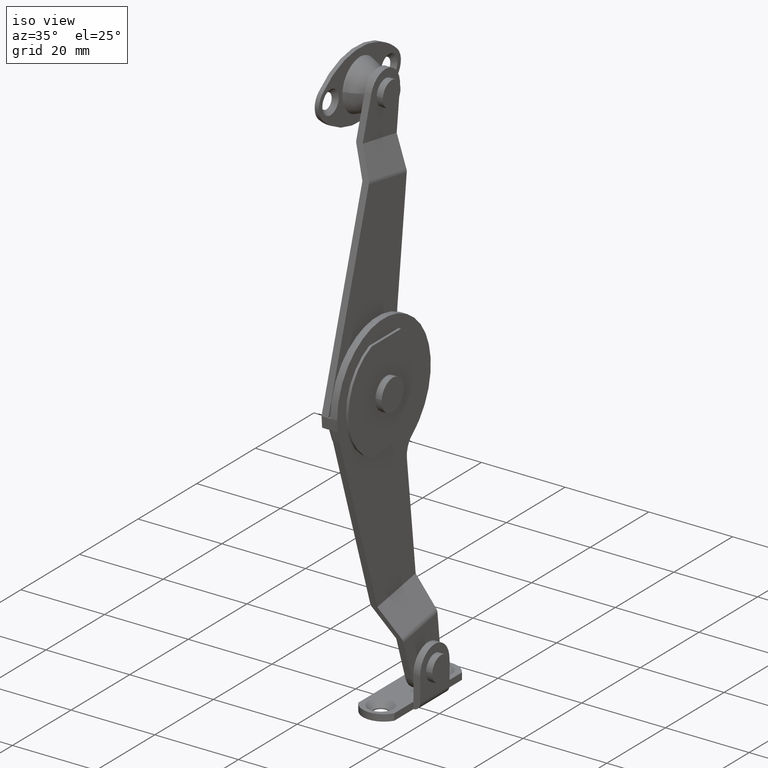
[diagram: clean part render]
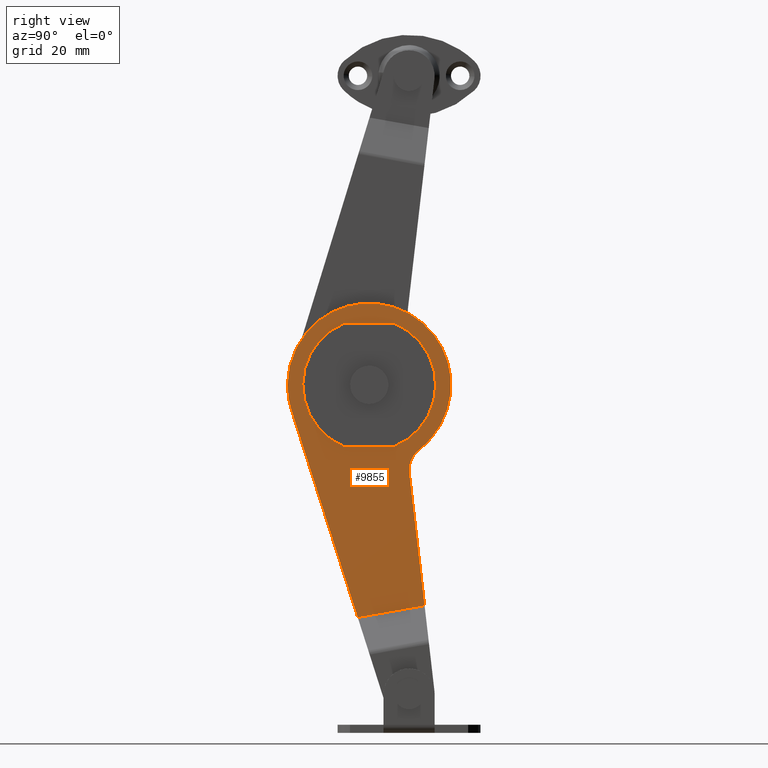
[diagram: tour spotlight — one face highlighted and labeled with its STEP entity id]
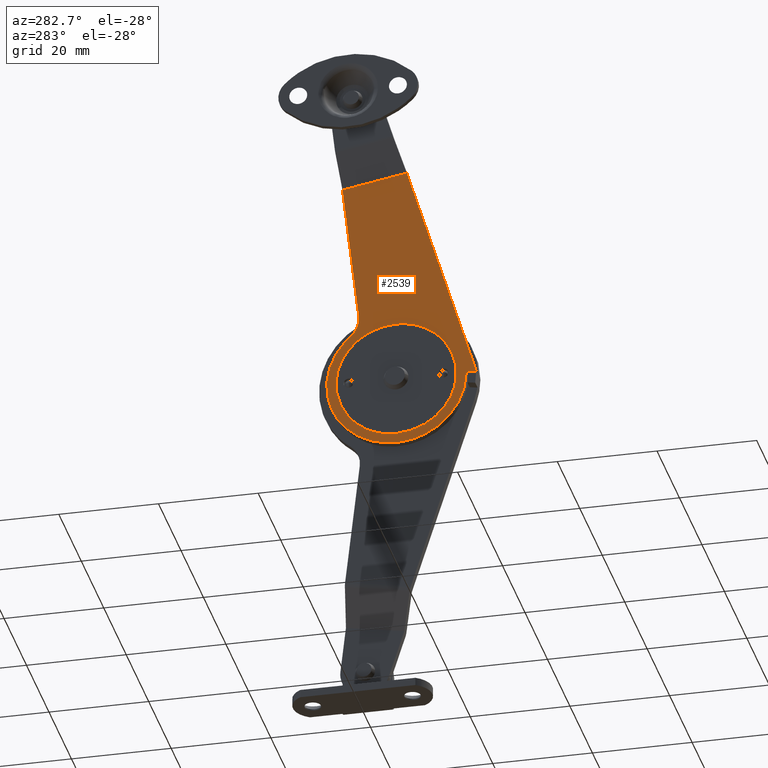
[diagram: tour spotlight — one face highlighted and labeled with its STEP entity id]
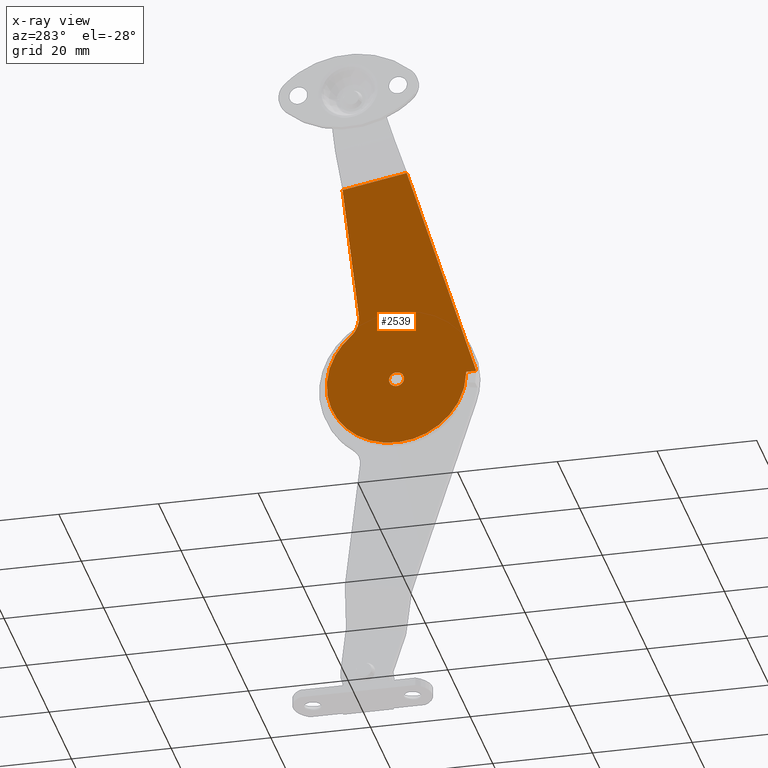
[diagram: x-ray of the same camera — body ghosted, this tour face saturated]
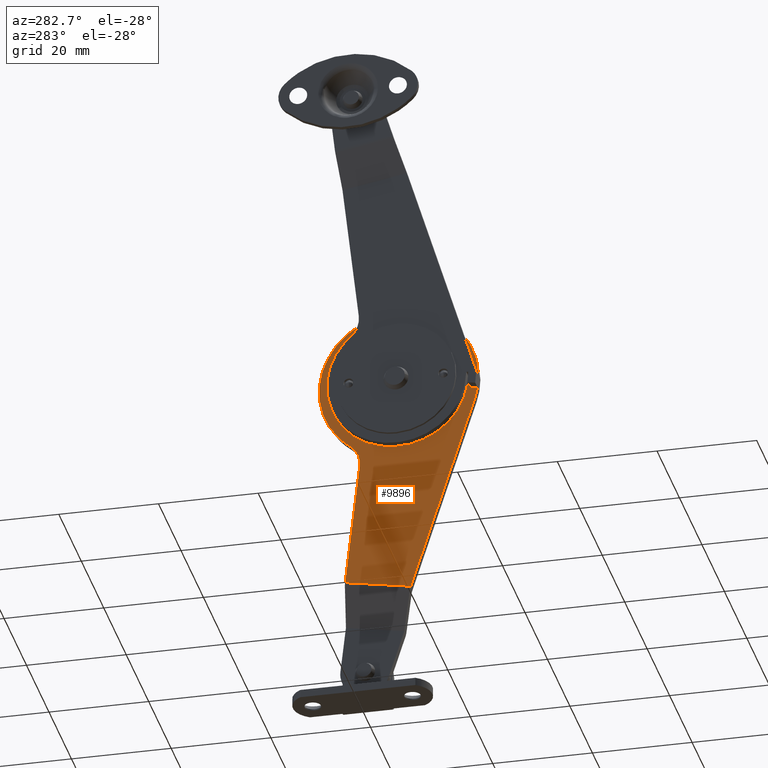
[diagram: tour spotlight — one face highlighted and labeled with its STEP entity id]
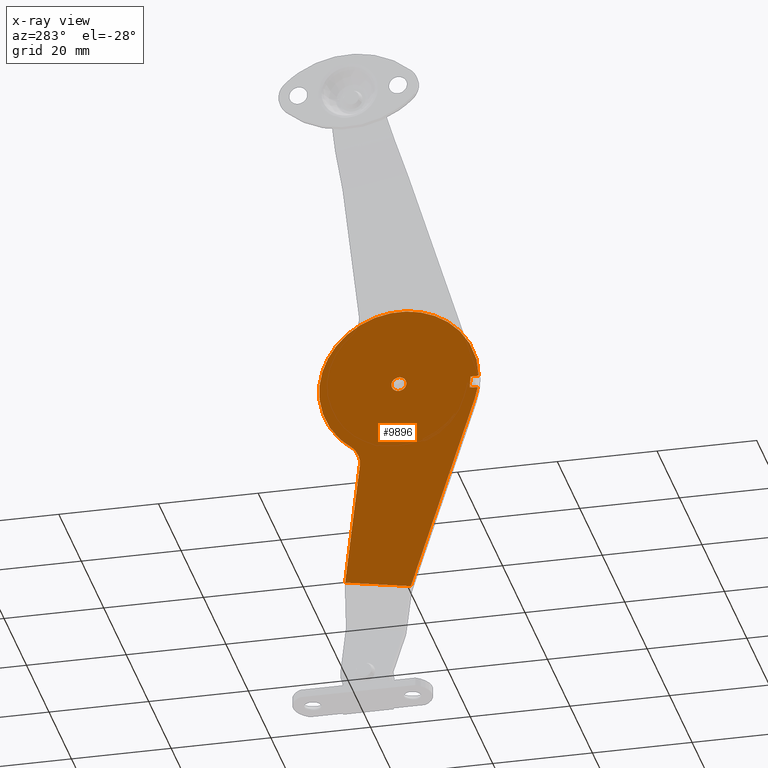
[diagram: x-ray of the same camera — body ghosted, this tour face saturated]
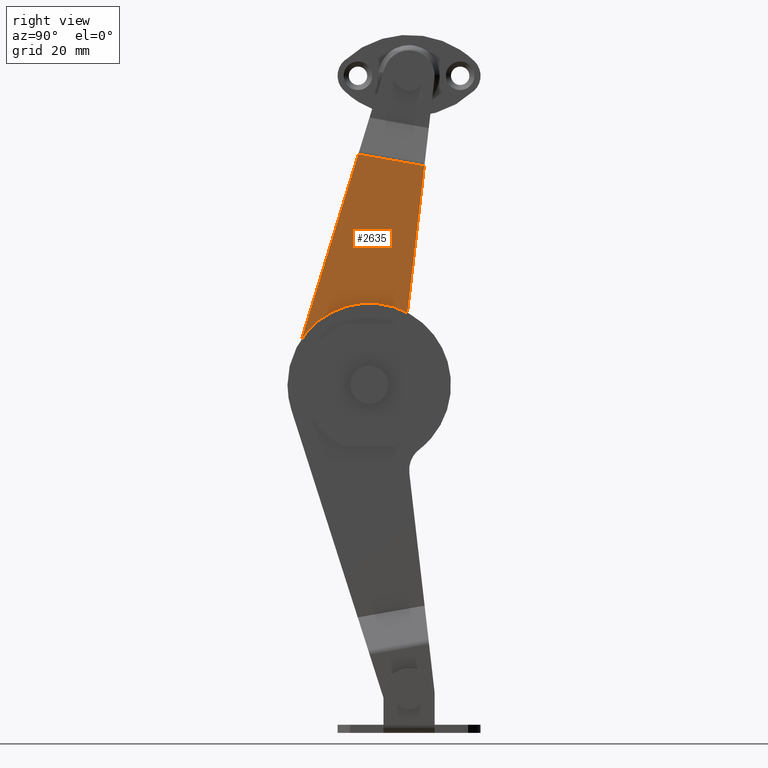
[diagram: tour spotlight — one face highlighted and labeled with its STEP entity id]
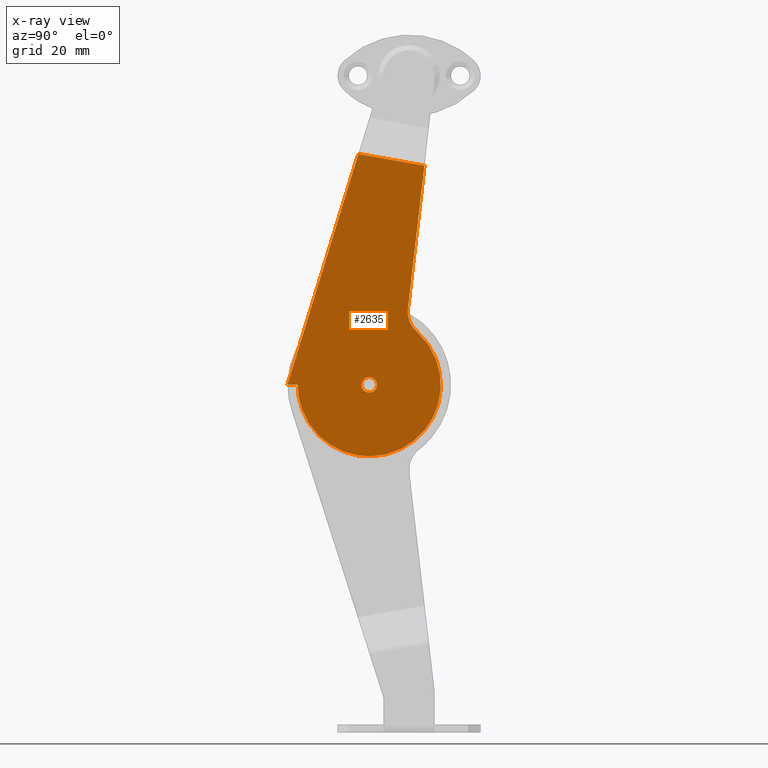
[diagram: x-ray of the same camera — body ghosted, this tour face saturated]
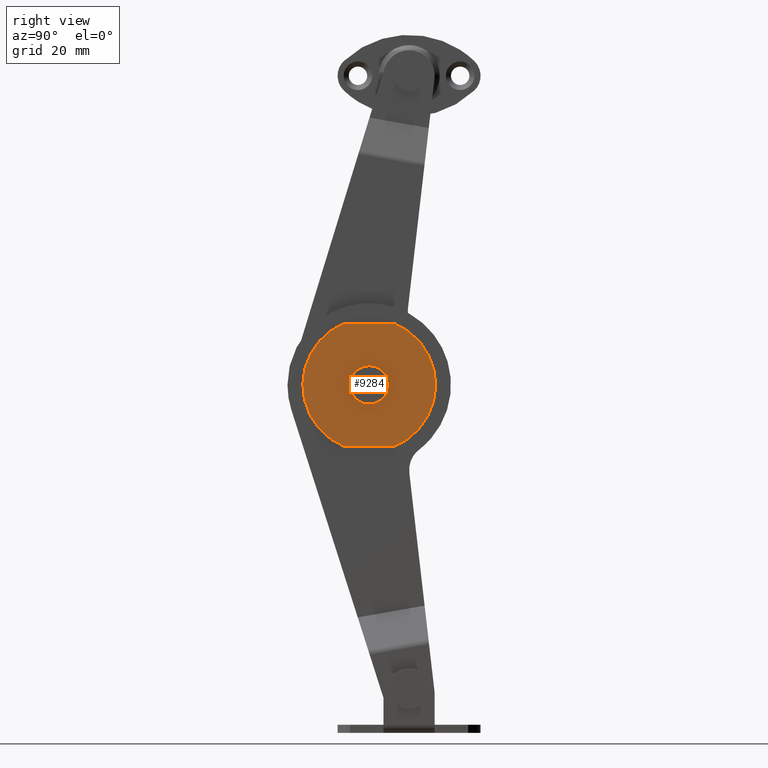
[diagram: tour spotlight — one face highlighted and labeled with its STEP entity id]
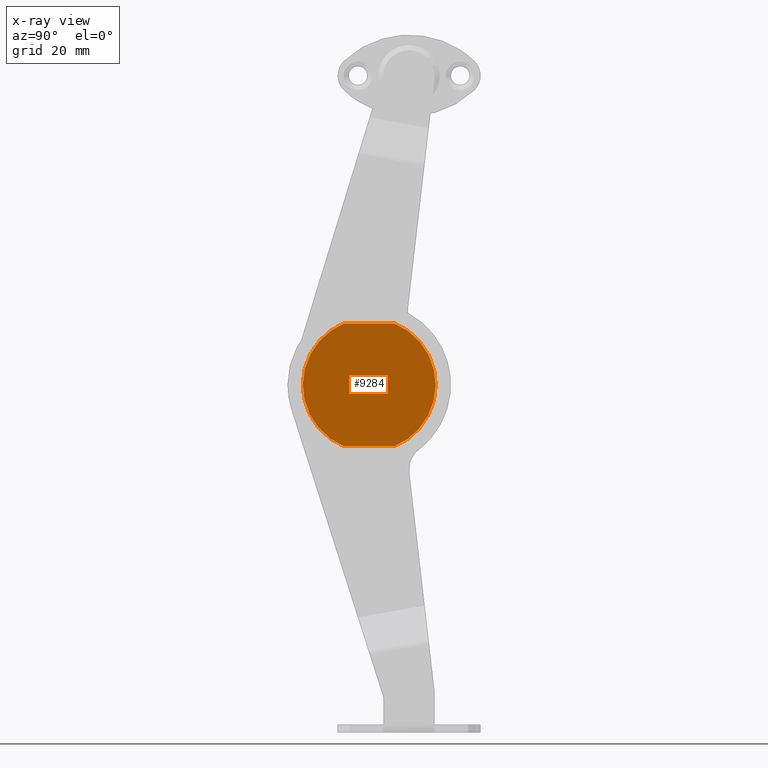
[diagram: x-ray of the same camera — body ghosted, this tour face saturated]
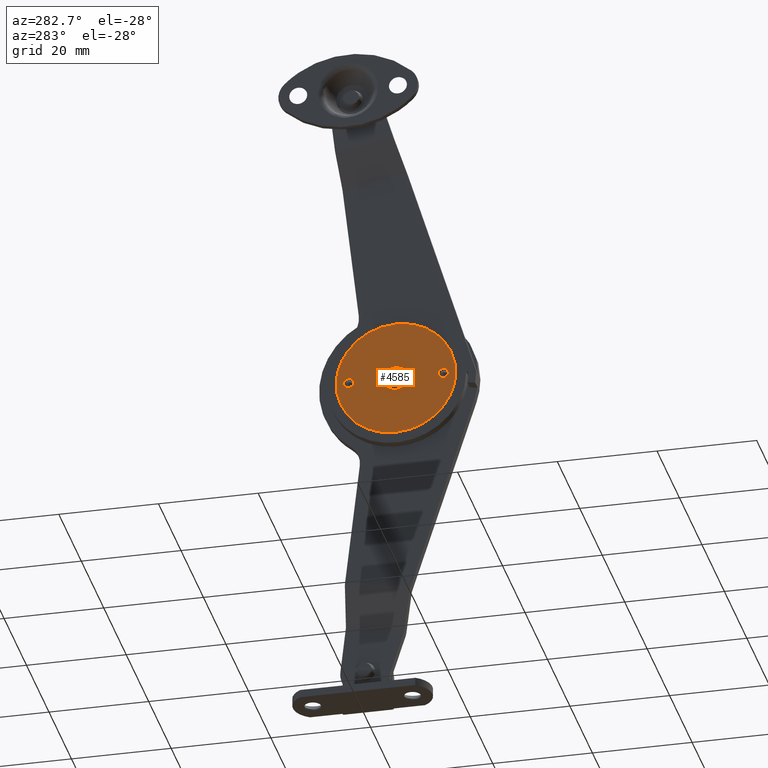
[diagram: tour spotlight — one face highlighted and labeled with its STEP entity id]
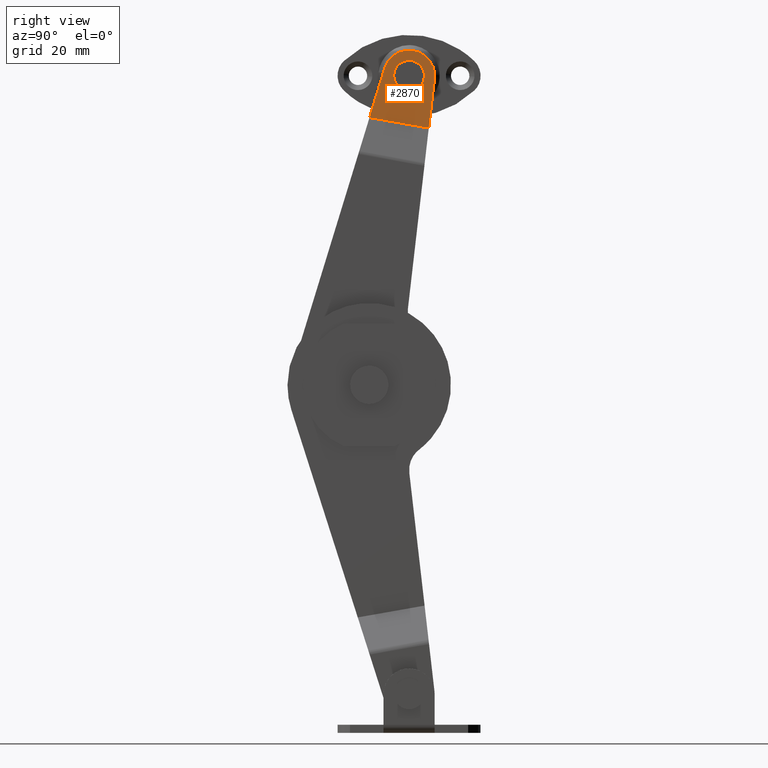
[diagram: tour spotlight — one face highlighted and labeled with its STEP entity id]
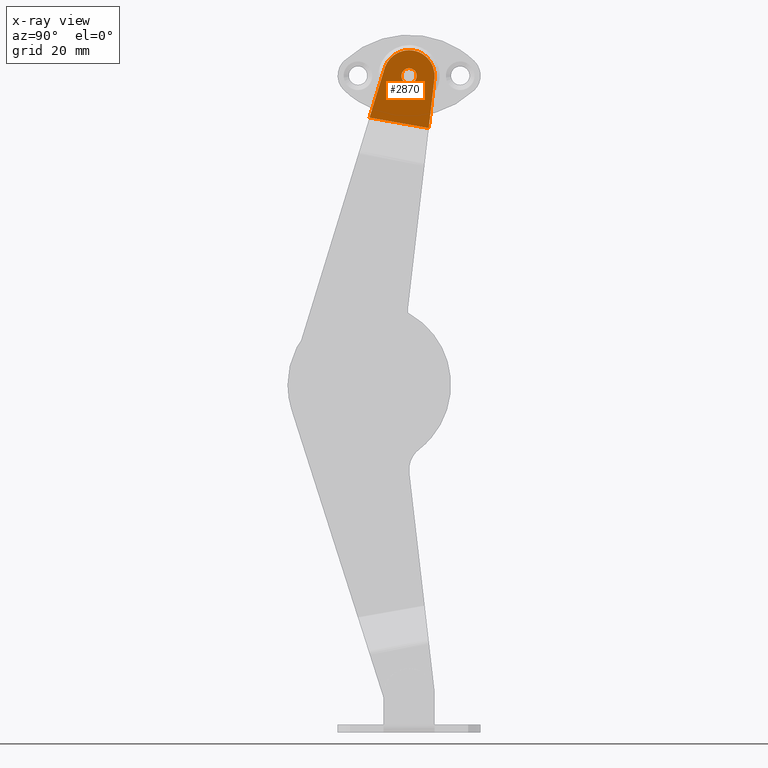
[diagram: x-ray of the same camera — body ghosted, this tour face saturated]
A machine part: a face-by-face anatomy tour. The part has 155 B-rep faces; the first image is the clean iso view, then the 7 largest visible faces are spotlighted one at a time (largest first), each with its STEP entity span.

Face 1 — right view, entity #9855. In plain terms, the highlighted face is a freeform B-spline surface patch.
Definition (entity closure, byte-faithful):
#9303=CARTESIAN_POINT('',(12.199999000000121,-12.799999592003379,-12.000000169998600));
#9304=VERTEX_POINT('',#9303);
#9305=CARTESIAN_POINT('',(12.199999000000121,-12.800000319600439,11.999999866833139));
#9306=VERTEX_POINT('',#9305);
#9307=CARTESIAN_POINT('',(12.199999000000121,-12.799999592003370,-12.000000169998589));
#9308=CARTESIAN_POINT('',(12.199999000000123,-20.799999737256602,-8.666667095362655));
#9309=CARTESIAN_POINT('',(12.199999000000121,-20.799999999999990,-0.000000394115080));
#9310=CARTESIAN_POINT('',(12.199999000000123,-20.800000262743382,8.666666307132493));
#9311=CARTESIAN_POINT('',(12.199999000000121,-12.800000319600450,11.999999866833139));
#9319=(BOUNDED_CURVE()B_SPLINE_CURVE(2,(#9307,#9308,#9309,#9310,#9311),.UNSPECIFIED.,.F.,.U.)B_SPLINE_CURVE_WITH_KNOTS((3,2,3),(0.0,0.500000000000000,1.0),.UNSPECIFIED.)CURVE()GEOMETRIC_REPRESENTATION_ITEM()RATIONAL_B_SPLINE_CURVE((1.0,0.832050293316315,1.0,0.832050293316315,1.0))REPRESENTATION_ITEM(''));
#9320=EDGE_CURVE('',#9304,#9306,#9319,.T.);
#9341=CARTESIAN_POINT('',(12.199999000000121,-2.799999360799120,11.999999733666280));
#9342=VERTEX_POINT('',#9341);
#9343=CARTESIAN_POINT('',(12.199999000000121,-2.799999360799120,11.999999733666280));
#9344=CARTESIAN_POINT('',(12.199999000000121,-12.800000319600439,11.999999866833139));
#9345=QUASI_UNIFORM_CURVE('',1,(#9343,#9344),.UNSPECIFIED.,.F.,.U.);
#9346=EDGE_CURVE('',#9342,#9306,#9345,.T.);
#9376=CARTESIAN_POINT('',(12.199999000000121,-2.800000198557120,-12.000000082732120));
#9377=VERTEX_POINT('',#9376);
#9378=CARTESIAN_POINT('',(12.199999000000121,-2.799999360799121,11.999999733666280));
#9379=CARTESIAN_POINT('',(12.199999000000124,5.200000302523709,8.666666040499603));
#9380=CARTESIAN_POINT('',(12.199999000000121,5.199999999999993,-0.000000453785581));
#9381=CARTESIAN_POINT('',(12.199999000000124,5.199999697476279,-8.666666948070766));
#9382=CARTESIAN_POINT('',(12.199999000000121,-2.800000198557112,-12.000000082732130));
#9390=(BOUNDED_CURVE()B_SPLINE_CURVE(2,(#9378,#9379,#9380,#9381,#9382),.UNSPECIFIED.,.F.,.U.)B_SPLINE_CURVE_WITH_KNOTS((3,2,3),(0.0,0.500000000000000,1.0),.UNSPECIFIED.)CURVE()GEOMETRIC_REPRESENTATION_ITEM()RATIONAL_B_SPLINE_CURVE((1.0,0.832050299430035,1.0,0.832050299430035,1.0))REPRESENTATION_ITEM(''));
#9391=EDGE_CURVE('',#9342,#9377,#9390,.T.);
#9408=CARTESIAN_POINT('',(12.199999000000121,-12.799999592003379,-12.000000169998600));
#9409=CARTESIAN_POINT('',(12.199999000000121,-2.800000198557120,-12.000000082732120));
#9410=QUASI_UNIFORM_CURVE('',1,(#9408,#9409),.UNSPECIFIED.,.F.,.U.);
#9411=EDGE_CURVE('',#9304,#9377,#9410,.T.);
#9452=CARTESIAN_POINT('',(12.199999000000100,3.040317605035705,-43.195079633390698));
#9453=VERTEX_POINT('',#9452);
#9459=CARTESIAN_POINT('',(12.199999000000121,-10.045858391843000,-45.502522496364001));
#9460=VERTEX_POINT('',#9459);
#9461=CARTESIAN_POINT('',(12.199999000000100,3.040317605035705,-43.195079633390698));
#9462=CARTESIAN_POINT('',(12.199999000000121,-10.045858391843000,-45.502522496364001));
#9463=QUASI_UNIFORM_CURVE('',1,(#9461,#9462),.UNSPECIFIED.,.F.,.U.);
#9464=EDGE_CURVE('',#9453,#9460,#9463,.T.);
#9524=CARTESIAN_POINT('',(12.199999000000121,-23.588741688422601,-2.591403821968995));
#9525=VERTEX_POINT('',#9524);
#9526=CARTESIAN_POINT('',(12.199999000000121,-23.800000000000001,1.301043E-015));
#9527=VERTEX_POINT('',#9526);
#9528=CARTESIAN_POINT('',(12.199999000000121,-23.588741688422601,-2.591403821968995));
#9529=CARTESIAN_POINT('',(12.199999000000121,-23.800000000000001,1.301043E-015));
#9530=QUASI_UNIFORM_CURVE('',1,(#9528,#9529),.UNSPECIFIED.,.F.,.U.);
#9531=EDGE_CURVE('',#9525,#9527,#9530,.T.);
#9563=CARTESIAN_POINT('',(12.199999000000121,-23.040047105278049,-4.872470033659170));
#9564=VERTEX_POINT('',#9563);
#9565=CARTESIAN_POINT('',(12.199999000000121,-23.040047105278049,-4.872470033659170));
#9566=CARTESIAN_POINT('',(12.199999000000123,-23.398240010170014,-3.752105714727895));
#9567=CARTESIAN_POINT('',(12.199999000000121,-23.588741688422601,-2.591403821968995));
#9575=(BOUNDED_CURVE()B_SPLINE_CURVE(2,(#9565,#9566,#9567),.UNSPECIFIED.,.F.,.U.)CURVE()GEOMETRIC_REPRESENTATION_ITEM()QUASI_UNIFORM_CURVE()RATIONAL_B_SPLINE_CURVE((1.0,0.997308716570157,1.0))REPRESENTATION_ITEM(''));
#9576=EDGE_CURVE('',#9564,#9525,#9575,.T.);
#9616=CARTESIAN_POINT('',(12.199999000000121,0.047796569510273,-17.207867849492299));
#9617=VERTEX_POINT('',#9616);
#9640=CARTESIAN_POINT('',(12.199999000000121,1.963846251710565,-12.675460795290920));
#9641=VERTEX_POINT('',#9640);
#9647=CARTESIAN_POINT('',(12.199999000000121,0.047796569510295,-17.207867849492299));
#9648=CARTESIAN_POINT('',(12.199999000000123,-0.275143696431169,-14.400143502018354));
#9649=CARTESIAN_POINT('',(12.199999000000121,1.963846251710565,-12.675460795290920));
#9657=(BOUNDED_CURVE()B_SPLINE_CURVE(2,(#9647,#9648,#9649),.UNSPECIFIED.,.F.,.U.)CURVE()GEOMETRIC_REPRESENTATION_ITEM()QUASI_UNIFORM_CURVE()RATIONAL_B_SPLINE_CURVE((1.0,0.870551768570907,1.0))REPRESENTATION_ITEM(''));
#9658=EDGE_CURVE('',#9617,#9641,#9657,.T.);
#9685=CARTESIAN_POINT('',(12.199999000000121,-23.800000000000001,4.775965E-016));
#9686=CARTESIAN_POINT('',(12.199999000000119,-23.800000000000008,12.833180489084308));
#9687=CARTESIAN_POINT('',(12.199999000000121,-11.272746786555491,15.618579633131450));
#9688=CARTESIAN_POINT('',(12.199999000000119,1.254506426889011,18.403978777178587));
#9689=CARTESIAN_POINT('',(12.199999000000121,6.692503719558561,6.779921528939793));
#9690=CARTESIAN_POINT('',(12.199999000000119,12.130501012228102,-4.844135719298991));
#9691=CARTESIAN_POINT('',(12.199999000000121,1.963846251710576,-12.675460795290929));
#9699=(BOUNDED_CURVE()B_SPLINE_CURVE(2,(#9685,#9686,#9687,#9688,#9689,#9690,#9691),.UNSPECIFIED.,.F.,.U.)B_SPLINE_CURVE_WITH_KNOTS((3,2,2,3),(0.0,0.333333333333333,0.666666666666667,1.0),.UNSPECIFIED.)CURVE()GEOMETRIC_REPRESENTATION_ITEM()RATIONAL_B_SPLINE_CURVE((1.0,0.780079058224139,1.0,0.780079058224139,1.0,0.780079058224139,1.0))REPRESENTATION_ITEM(''));
#9700=EDGE_CURVE('',#9527,#9641,#9699,.T.);
#9790=CARTESIAN_POINT('',(12.199999000000121,-10.045858391843000,-45.502522496364001));
#9791=CARTESIAN_POINT('',(12.199999000000121,-23.040047105278049,-4.872470033659170));
#9792=QUASI_UNIFORM_CURVE('',1,(#9790,#9791),.UNSPECIFIED.,.F.,.U.);
#9793=EDGE_CURVE('',#9460,#9564,#9792,.T.);
#9816=CARTESIAN_POINT('',(12.199999000000121,0.047796569510273,-17.207867849492299));
#9817=CARTESIAN_POINT('',(12.199999000000100,3.040317605035705,-43.195079633390698));
#9818=QUASI_UNIFORM_CURVE('',1,(#9816,#9817),.UNSPECIFIED.,.F.,.U.);
#9819=EDGE_CURVE('',#9617,#9453,#9818,.T.);
#9835=CARTESIAN_POINT('',(12.199999000000080,-25.397990810073111,19.049682790988761));
#9836=CARTESIAN_POINT('',(12.199999000000080,-25.397990810073111,-48.573506285666568));
#9837=CARTESIAN_POINT('',(12.199999000000080,9.789813483086167,19.049682790988761));
#9838=CARTESIAN_POINT('',(12.199999000000080,9.789813483086167,-48.573506285666568));
#9839=B_SPLINE_SURFACE_WITH_KNOTS('',1,1,((#9835,#9837),(#9836,#9838)),.UNSPECIFIED.,.F.,.F.,.U.,(2,2),(2,2),(0.0,67.623189076655336),(0.0,35.187804293159267),.UNSPECIFIED.);
#9840=ORIENTED_EDGE('',*,*,#9819,.F.);
#9841=ORIENTED_EDGE('',*,*,#9658,.T.);
#9842=ORIENTED_EDGE('',*,*,#9700,.F.);
#9843=ORIENTED_EDGE('',*,*,#9531,.F.);
#9844=ORIENTED_EDGE('',*,*,#9576,.F.);
#9845=ORIENTED_EDGE('',*,*,#9793,.F.);
#9846=ORIENTED_EDGE('',*,*,#9464,.F.);
#9847=EDGE_LOOP('',(#9840,#9841,#9842,#9843,#9844,#9845,#9846));
#9848=FACE_OUTER_BOUND('',#9847,.T.);
#9849=ORIENTED_EDGE('',*,*,#9320,.T.);
#9850=ORIENTED_EDGE('',*,*,#9346,.F.);
#9851=ORIENTED_EDGE('',*,*,#9391,.T.);
#9852=ORIENTED_EDGE('',*,*,#9411,.F.);
#9853=EDGE_LOOP('',(#9849,#9850,#9851,#9852));
#9854=FACE_BOUND('',#9853,.T.);
#9855=ADVANCED_FACE('',(#9848,#9854),#9839,.T.);

Face 2 — auxiliary view, entity #2539. An x-ray twin of the same camera follows (body ghosted, this face saturated) — the face is partly hidden behind the body. In plain terms, the highlighted face is a freeform B-spline surface patch.
Definition (entity closure, byte-faithful):
#2158=CARTESIAN_POINT('',(8.500000000000000,-7.800000000000000,1.500000000000000));
#2159=VERTEX_POINT('',#2158);
#2160=CARTESIAN_POINT('',(8.500000000000000,-6.304623999469547,0.117688644471537));
#2161=VERTEX_POINT('',#2160);
#2162=CARTESIAN_POINT('',(8.500000000000000,-7.800000000000000,1.500000000000000));
#2163=CARTESIAN_POINT('',(8.500000000000002,-6.413414264149263,1.500000000000000));
#2164=CARTESIAN_POINT('',(8.500000000000000,-6.304623999469547,0.117688644471537));
#2172=(BOUNDED_CURVE()B_SPLINE_CURVE(2,(#2162,#2163,#2164),.UNSPECIFIED.,.F.,.U.)B_SPLINE_CURVE_WITH_KNOTS((3,3),(0.0,0.236331300431060),.UNSPECIFIED.)CURVE()GEOMETRIC_REPRESENTATION_ITEM()RATIONAL_B_SPLINE_CURVE((1.0,0.723120658841511,0.969723355750868))REPRESENTATION_ITEM(''));
#2173=EDGE_CURVE('',#2159,#2161,#2172,.T.);
#2214=CARTESIAN_POINT('',(8.500000000000000,-9.295376000530453,-0.117688644471537));
#2215=VERTEX_POINT('',#2214);
#2221=CARTESIAN_POINT('',(8.500000000000000,-9.295376000530453,-0.117688644471537));
#2222=CARTESIAN_POINT('',(8.500000000000000,-9.299999999999999,-0.058935161395356));
#2223=CARTESIAN_POINT('',(8.500000000000000,-9.299999999999999,3.533602E-019));
#2224=CARTESIAN_POINT('',(8.500000000000002,-9.299999999999999,1.500000000000000));
#2225=CARTESIAN_POINT('',(8.500000000000000,-7.800000000000000,1.500000000000000));
#2233=(BOUNDED_CURVE()B_SPLINE_CURVE(2,(#2221,#2222,#2223,#2224,#2225),.UNSPECIFIED.,.F.,.U.)B_SPLINE_CURVE_WITH_KNOTS((3,2,3),(0.736331300431060,0.750000000000000,1.0),.UNSPECIFIED.)CURVE()GEOMETRIC_REPRESENTATION_ITEM()RATIONAL_B_SPLINE_CURVE((0.969723355750868,0.983986122345036,1.0,0.707106781186548,1.0))REPRESENTATION_ITEM(''));
#2234=EDGE_CURVE('',#2215,#2159,#2233,.T.);
#2257=CARTESIAN_POINT('',(8.500000000000000,-7.800000000000000,-1.500000000000000));
#2258=VERTEX_POINT('',#2257);
#2259=CARTESIAN_POINT('',(8.500000000000000,-6.304623999469547,0.117688644471537));
#2260=CARTESIAN_POINT('',(8.499999999999998,-6.300000000000000,0.058935161395356));
#2261=CARTESIAN_POINT('',(8.500000000000000,-6.300000000000000,3.533602E-019));
#2262=CARTESIAN_POINT('',(8.500000000000002,-6.299999999999998,-1.500000000000000));
#2263=CARTESIAN_POINT('',(8.500000000000000,-7.800000000000000,-1.500000000000000));
#2271=(BOUNDED_CURVE()B_SPLINE_CURVE(2,(#2259,#2260,#2261,#2262,#2263),.UNSPECIFIED.,.F.,.U.)B_SPLINE_CURVE_WITH_KNOTS((3,2,3),(0.236331300431060,0.250000000000000,0.500000000000000),.UNSPECIFIED.)CURVE()GEOMETRIC_REPRESENTATION_ITEM()RATIONAL_B_SPLINE_CURVE((0.969723355750868,0.983986122345036,1.0,0.707106781186548,1.0))REPRESENTATION_ITEM(''));
#2272=EDGE_CURVE('',#2161,#2258,#2271,.T.);
#2274=CARTESIAN_POINT('',(8.500000000000000,-7.800000000000000,-1.500000000000000));
#2275=CARTESIAN_POINT('',(8.500000000000000,-9.186585735850741,-1.500000000000000));
#2276=CARTESIAN_POINT('',(8.500000000000000,-9.295376000530453,-0.117688644471537));
#2284=(BOUNDED_CURVE()B_SPLINE_CURVE(2,(#2274,#2275,#2276),.UNSPECIFIED.,.F.,.U.)B_SPLINE_CURVE_WITH_KNOTS((3,3),(0.500000000000000,0.736331300431061),.UNSPECIFIED.)CURVE()GEOMETRIC_REPRESENTATION_ITEM()RATIONAL_B_SPLINE_CURVE((1.0,0.723120658841510,0.969723355750870))REPRESENTATION_ITEM(''));
#2285=EDGE_CURVE('',#2258,#2215,#2284,.T.);
#2449=CARTESIAN_POINT('',(8.499998999999999,3.037120956720985,43.195629294114802));
#2450=VERTEX_POINT('',#2449);
#2456=CARTESIAN_POINT('',(8.499998999999999,-9.844681273392551,45.467037509238899));
#2457=VERTEX_POINT('',#2456);
#2458=CARTESIAN_POINT('',(8.499998999999999,-9.844681273392551,45.467037509238899));
#2459=CARTESIAN_POINT('',(8.499998999999999,3.037120956720985,43.195629294114802));
#2460=QUASI_UNIFORM_CURVE('',1,(#2458,#2459),.UNSPECIFIED.,.F.,.U.);
#2461=EDGE_CURVE('',#2457,#2450,#2460,.T.);
#2472=CARTESIAN_POINT('',(8.499998999999999,-25.298582997472948,-16.965420353554670));
#2473=CARTESIAN_POINT('',(8.499998999999999,-25.298582997472948,48.437181639498469));
#2474=CARTESIAN_POINT('',(8.499998999999999,7.678712853511714,-16.965420353554670));
#2475=CARTESIAN_POINT('',(8.499998999999999,7.678712853511714,48.437181639498469));
#2476=B_SPLINE_SURFACE_WITH_KNOTS('',1,1,((#2472,#2474),(#2473,#2475)),.UNSPECIFIED.,.F.,.F.,.U.,(2,2),(2,2),(0.0,65.402601993053139),(0.0,32.977295850984660),.UNSPECIFIED.);
#2477=CARTESIAN_POINT('',(8.499998999999999,-0.232317553530429,14.851602066470599));
#2478=VERTEX_POINT('',#2477);
#2479=CARTESIAN_POINT('',(8.499998999999999,-0.232317553530429,14.851602066470599));
#2480=CARTESIAN_POINT('',(8.499998999999999,3.037120956720985,43.195629294114802));
#2481=QUASI_UNIFORM_CURVE('',1,(#2479,#2480),.UNSPECIFIED.,.F.,.U.);
#2482=EDGE_CURVE('',#2478,#2450,#2481,.T.);
#2483=ORIENTED_EDGE('',*,*,#2482,.F.);
#2484=CARTESIAN_POINT('',(8.499998999999999,1.436129810107244,10.521117152225219));
#2485=VERTEX_POINT('',#2484);
#2486=CARTESIAN_POINT('',(8.499998999999999,-0.232317553530432,14.851602066470599));
#2487=CARTESIAN_POINT('',(8.499998999999999,-0.532488919492171,12.249300373656528));
#2488=CARTESIAN_POINT('',(8.499998999999999,1.436129810107256,10.521117152225230));
#2496=(BOUNDED_CURVE()B_SPLINE_CURVE(2,(#2486,#2487,#2488),.UNSPECIFIED.,.F.,.U.)CURVE()GEOMETRIC_REPRESENTATION_ITEM()QUASI_UNIFORM_CURVE()RATIONAL_B_SPLINE_CURVE((1.0,0.885794467143839,1.0))REPRESENTATION_ITEM(''));
#2497=EDGE_CURVE('',#2478,#2485,#2496,.T.);
#2498=ORIENTED_EDGE('',*,*,#2497,.T.);
#2499=CARTESIAN_POINT('',(8.499998999999999,-21.800000000000001,1.334821E-015));
#2500=VERTEX_POINT('',#2499);
#2501=CARTESIAN_POINT('',(8.499998999999999,-21.800000000000001,3.533602E-019));
#2502=CARTESIAN_POINT('',(8.499998999999999,-21.800000000000004,-10.985375248379880));
#2503=CARTESIAN_POINT('',(8.499998999999999,-11.129880402996710,-13.598231374033110));
#2504=CARTESIAN_POINT('',(8.499998999999999,-0.459760805993413,-16.211087499686347));
#2505=CARTESIAN_POINT('',(8.499998999999999,4.615985214534071,-6.468640595401122));
#2506=CARTESIAN_POINT('',(8.499998999999999,9.691731235061557,3.273806308884102));
#2507=CARTESIAN_POINT('',(8.499998999999999,1.436129810107260,10.521117152225241));
#2515=(BOUNDED_CURVE()B_SPLINE_CURVE(2,(#2501,#2502,#2503,#2504,#2505,#2506,#2507),.UNSPECIFIED.,.F.,.U.)B_SPLINE_CURVE_WITH_KNOTS((3,2,2,3),(0.0,0.333333333333333,0.666666666666667,1.0),.UNSPECIFIED.)CURVE()GEOMETRIC_REPRESENTATION_ITEM()RATIONAL_B_SPLINE_CURVE((1.0,0.786717420747135,1.0,0.786717420747135,1.0,0.786717420747135,1.0))REPRESENTATION_ITEM(''));
#2516=EDGE_CURVE('',#2500,#2485,#2515,.T.);
#2517=ORIENTED_EDGE('',*,*,#2516,.F.);
#2518=CARTESIAN_POINT('',(8.499998999999999,-23.800977647607802,1.457332E-015));
#2519=VERTEX_POINT('',#2518);
#2520=CARTESIAN_POINT('',(8.499998999999999,-23.800977647607802,1.457332E-015));
#2521=CARTESIAN_POINT('',(8.499998999999999,-21.800000000000001,1.334821E-015));
#2522=QUASI_UNIFORM_CURVE('',1,(#2520,#2521),.UNSPECIFIED.,.F.,.U.);
#2523=EDGE_CURVE('',#2519,#2500,#2522,.T.);
#2524=ORIENTED_EDGE('',*,*,#2523,.F.);
#2525=CARTESIAN_POINT('',(8.499998999999999,-9.844681273392551,45.467037509238899));
#2526=CARTESIAN_POINT('',(8.499998999999999,-23.800977647607802,1.457332E-015));
#2527=QUASI_UNIFORM_CURVE('',1,(#2525,#2526),.UNSPECIFIED.,.F.,.U.);
#2528=EDGE_CURVE('',#2457,#2519,#2527,.T.);
#2529=ORIENTED_EDGE('',*,*,#2528,.F.);
#2530=ORIENTED_EDGE('',*,*,#2461,.T.);
#2531=EDGE_LOOP('',(#2483,#2498,#2517,#2524,#2529,#2530));
#2532=FACE_OUTER_BOUND('',#2531,.T.);
#2533=ORIENTED_EDGE('',*,*,#2285,.F.);
#2534=ORIENTED_EDGE('',*,*,#2272,.F.);
#2535=ORIENTED_EDGE('',*,*,#2173,.F.);
#2536=ORIENTED_EDGE('',*,*,#2234,.F.);
#2537=EDGE_LOOP('',(#2533,#2534,#2535,#2536));
#2538=FACE_BOUND('',#2537,.T.);
#2539=ADVANCED_FACE('',(#2532,#2538),#2476,.T.);

Face 3 — auxiliary view, entity #9896. An x-ray twin of the same camera follows (body ghosted, this face saturated) — the face is partly hidden behind the body. In plain terms, the highlighted face is a freeform B-spline surface patch.
Definition (entity closure, byte-faithful):
#8863=CARTESIAN_POINT('',(10.599998999999960,-9.295376000530453,-0.117688644471537));
#8864=VERTEX_POINT('',#8863);
#8870=CARTESIAN_POINT('',(10.599998999999960,-7.800000000000000,1.500000000000000));
#8871=VERTEX_POINT('',#8870);
#8872=CARTESIAN_POINT('',(10.599998999999963,-9.295376000530453,-0.117688644471537));
#8873=CARTESIAN_POINT('',(10.599998999999960,-9.299999999999999,-0.058935161395356));
#8874=CARTESIAN_POINT('',(10.599998999999960,-9.299999999999999,3.533602E-019));
#8875=CARTESIAN_POINT('',(10.599998999999961,-9.299999999999999,1.500000000000000));
#8876=CARTESIAN_POINT('',(10.599998999999960,-7.800000000000000,1.500000000000000));
#8884=(BOUNDED_CURVE()B_SPLINE_CURVE(2,(#8872,#8873,#8874,#8875,#8876),.UNSPECIFIED.,.F.,.U.)B_SPLINE_CURVE_WITH_KNOTS((3,2,3),(0.736331300431060,0.750000000000000,1.0),.UNSPECIFIED.)CURVE()GEOMETRIC_REPRESENTATION_ITEM()RATIONAL_B_SPLINE_CURVE((0.969723355750868,0.983986122345036,1.0,0.707106781186548,1.0))REPRESENTATION_ITEM(''));
#8885=EDGE_CURVE('',#8864,#8871,#8884,.T.);
#8887=CARTESIAN_POINT('',(10.599998999999960,-6.304623999469547,0.117688644471537));
#8888=VERTEX_POINT('',#8887);
#8889=CARTESIAN_POINT('',(10.599998999999960,-7.800000000000000,1.500000000000000));
#8890=CARTESIAN_POINT('',(10.599998999999961,-6.413414264149264,1.500000000000000));
#8891=CARTESIAN_POINT('',(10.599998999999963,-6.304623999469547,0.117688644471537));
#8899=(BOUNDED_CURVE()B_SPLINE_CURVE(2,(#8889,#8890,#8891),.UNSPECIFIED.,.F.,.U.)B_SPLINE_CURVE_WITH_KNOTS((3,3),(0.0,0.236331300431060),.UNSPECIFIED.)CURVE()GEOMETRIC_REPRESENTATION_ITEM()RATIONAL_B_SPLINE_CURVE((1.0,0.723120658841511,0.969723355750868))REPRESENTATION_ITEM(''));
#8900=EDGE_CURVE('',#8871,#8888,#8899,.T.);
#8946=CARTESIAN_POINT('',(10.599998999999960,-7.800000000000000,-1.500000000000000));
#8947=VERTEX_POINT('',#8946);
#8948=CARTESIAN_POINT('',(10.599998999999963,-6.304623999469547,0.117688644471537));
#8949=CARTESIAN_POINT('',(10.599998999999960,-6.300000000000000,0.058935161395357));
#8950=CARTESIAN_POINT('',(10.599998999999960,-6.300000000000000,3.533602E-019));
#8951=CARTESIAN_POINT('',(10.599998999999961,-6.299999999999998,-1.500000000000000));
#8952=CARTESIAN_POINT('',(10.599998999999960,-7.800000000000000,-1.500000000000000));
#8960=(BOUNDED_CURVE()B_SPLINE_CURVE(2,(#8948,#8949,#8950,#8951,#8952),.UNSPECIFIED.,.F.,.U.)B_SPLINE_CURVE_WITH_KNOTS((3,2,3),(0.236331300431060,0.250000000000000,0.500000000000000),.UNSPECIFIED.)CURVE()GEOMETRIC_REPRESENTATION_ITEM()RATIONAL_B_SPLINE_CURVE((0.969723355750868,0.983986122345036,1.0,0.707106781186548,1.0))REPRESENTATION_ITEM(''));
#8961=EDGE_CURVE('',#8888,#8947,#8960,.T.);
#8963=CARTESIAN_POINT('',(10.599998999999960,-7.800000000000000,-1.500000000000000));
#8964=CARTESIAN_POINT('',(10.599998999999961,-9.186585735850741,-1.500000000000000));
#8965=CARTESIAN_POINT('',(10.599998999999960,-9.295376000530453,-0.117688644471537));
#8973=(BOUNDED_CURVE()B_SPLINE_CURVE(2,(#8963,#8964,#8965),.UNSPECIFIED.,.F.,.U.)B_SPLINE_CURVE_WITH_KNOTS((3,3),(0.500000000000000,0.736331300431061),.UNSPECIFIED.)CURVE()GEOMETRIC_REPRESENTATION_ITEM()RATIONAL_B_SPLINE_CURVE((1.0,0.723120658841510,0.969723355750870))REPRESENTATION_ITEM(''));
#8974=EDGE_CURVE('',#8947,#8864,#8973,.T.);
#9068=CARTESIAN_POINT('',(10.599999000000080,2.986160245175331,-42.724774175902901));
#9069=VERTEX_POINT('',#9068);
#9092=CARTESIAN_POINT('',(10.599999000000080,-10.191131903221841,-45.048283253603302));
#9093=VERTEX_POINT('',#9092);
#9107=CARTESIAN_POINT('',(10.599999000000080,-10.191131903221841,-45.048283253603302));
#9108=CARTESIAN_POINT('',(10.599999000000080,2.986160245175331,-42.724774175902901));
#9109=QUASI_UNIFORM_CURVE('',1,(#9107,#9108),.UNSPECIFIED.,.F.,.U.);
#9110=EDGE_CURVE('',#9093,#9069,#9109,.T.);
#9156=CARTESIAN_POINT('',(10.599998999999960,-22.194691999999851,1.358988E-015));
#9157=VERTEX_POINT('',#9156);
#9158=CARTESIAN_POINT('',(10.599999000000080,-23.800000000000001,1.457282E-015));
#9159=VERTEX_POINT('',#9158);
#9160=CARTESIAN_POINT('',(10.599998999999960,-22.194691999999851,1.358988E-015));
#9161=CARTESIAN_POINT('',(10.599999000000080,-23.800000000000001,1.457282E-015));
#9162=QUASI_UNIFORM_CURVE('',1,(#9160,#9161),.UNSPECIFIED.,.F.,.U.);
#9163=EDGE_CURVE('',#9157,#9159,#9162,.T.);
#9184=CARTESIAN_POINT('',(10.599998999999960,-22.004637999999900,-2.331405000000100));
#9185=VERTEX_POINT('',#9184);
#9186=CARTESIAN_POINT('',(10.599998999999960,-22.004637999999900,-2.331405000000100));
#9187=CARTESIAN_POINT('',(10.599998999999960,-22.194691999999851,1.358988E-015));
#9188=QUASI_UNIFORM_CURVE('',1,(#9186,#9187),.UNSPECIFIED.,.F.,.U.);
#9189=EDGE_CURVE('',#9185,#9157,#9188,.T.);
#9206=CARTESIAN_POINT('',(10.599999000000080,-23.588749989517350,-2.591403821968995));
#9207=VERTEX_POINT('',#9206);
#9208=CARTESIAN_POINT('',(10.599999000000080,-23.588749989517350,-2.591403821968995));
#9209=CARTESIAN_POINT('',(10.599998999999960,-22.004637999999900,-2.331405000000100));
#9210=QUASI_UNIFORM_CURVE('',1,(#9208,#9209),.UNSPECIFIED.,.F.,.U.);
#9211=EDGE_CURVE('',#9207,#9185,#9210,.T.);
#9579=CARTESIAN_POINT('',(10.599999000000080,-23.040047000000001,-4.872470000000221));
#9580=VERTEX_POINT('',#9579);
#9581=CARTESIAN_POINT('',(10.599999000000080,-23.040047000000001,-4.872470000000221));
#9582=CARTESIAN_POINT('',(10.599999000000086,-23.398244257661915,-3.752105734321013));
#9583=CARTESIAN_POINT('',(10.599999000000080,-23.588749989517360,-2.591403821969006));
#9591=(BOUNDED_CURVE()B_SPLINE_CURVE(2,(#9581,#9582,#9583),.UNSPECIFIED.,.F.,.U.)CURVE()GEOMETRIC_REPRESENTATION_ITEM()QUASI_UNIFORM_CURVE()RATIONAL_B_SPLINE_CURVE((1.0,0.997308713489785,1.0))REPRESENTATION_ITEM(''));
#9592=EDGE_CURVE('',#9580,#9207,#9591,.T.);
#9618=CARTESIAN_POINT('',(10.599999000000080,0.047796569510274,-17.207867849492299));
#9619=VERTEX_POINT('',#9618);
#9625=CARTESIAN_POINT('',(10.599999000000080,1.963846033187425,-12.675460511603379));
#9626=VERTEX_POINT('',#9625);
#9627=CARTESIAN_POINT('',(10.599999000000080,0.047796569510296,-17.207867849492299));
#9628=CARTESIAN_POINT('',(10.599999000000080,-0.275143696431170,-14.400143502018354));
#9629=CARTESIAN_POINT('',(10.599999000000080,1.963846033187431,-12.675460511603390));
#9637=(BOUNDED_CURVE()B_SPLINE_CURVE(2,(#9627,#9628,#9629),.UNSPECIFIED.,.F.,.U.)CURVE()GEOMETRIC_REPRESENTATION_ITEM()QUASI_UNIFORM_CURVE()RATIONAL_B_SPLINE_CURVE((1.0,0.870551768570907,1.0))REPRESENTATION_ITEM(''));
#9638=EDGE_CURVE('',#9619,#9626,#9637,.T.);
#9703=CARTESIAN_POINT('',(10.599999000000080,-23.800000000000001,4.775965E-016));
#9704=CARTESIAN_POINT('',(10.599999000000080,-23.800000000000001,12.833180489084292));
#9705=CARTESIAN_POINT('',(10.599999000000080,-11.272746786555510,15.618579633131450));
#9706=CARTESIAN_POINT('',(10.599999000000080,1.254506426888978,18.403978777178594));
#9707=CARTESIAN_POINT('',(10.599999000000080,6.692503719558547,6.779921528939822));
#9708=CARTESIAN_POINT('',(10.599999000000080,12.130501012228118,-4.844135719298964));
#9709=CARTESIAN_POINT('',(10.599999000000080,1.963846033187425,-12.675460511603379));
#9717=(BOUNDED_CURVE()B_SPLINE_CURVE(2,(#9703,#9704,#9705,#9706,#9707,#9708,#9709),.UNSPECIFIED.,.F.,.U.)B_SPLINE_CURVE_WITH_KNOTS((3,2,2,3),(0.0,0.333333333333333,0.666666666666667,1.0),.UNSPECIFIED.)CURVE()GEOMETRIC_REPRESENTATION_ITEM()RATIONAL_B_SPLINE_CURVE((1.0,0.780079058224139,1.0,0.780079058224139,1.0,0.780079058224139,1.0))REPRESENTATION_ITEM(''));
#9718=EDGE_CURVE('',#9159,#9626,#9717,.T.);
#9796=CARTESIAN_POINT('',(10.599999000000080,-10.191131903221841,-45.048283253603302));
#9797=CARTESIAN_POINT('',(10.599999000000080,-23.040047000000001,-4.872470000000221));
#9798=QUASI_UNIFORM_CURVE('',1,(#9796,#9797),.UNSPECIFIED.,.F.,.U.);
#9799=EDGE_CURVE('',#9093,#9580,#9798,.T.);
#9810=CARTESIAN_POINT('',(10.599999000000080,0.047796569510274,-17.207867849492299));
#9811=CARTESIAN_POINT('',(10.599999000000080,2.986160245175331,-42.724774175902901));
#9812=QUASI_UNIFORM_CURVE('',1,(#9810,#9811),.UNSPECIFIED.,.F.,.U.);
#9813=EDGE_CURVE('',#9619,#9069,#9812,.T.);
#9874=CARTESIAN_POINT('',(10.599999000000000,9.789813413899118,-48.096580134058769));
#9875=CARTESIAN_POINT('',(10.599999000000000,-25.397989909868851,-48.096580134058769));
#9876=CARTESIAN_POINT('',(10.599999000000000,9.789813413899118,19.026994220061731));
#9877=CARTESIAN_POINT('',(10.599999000000000,-25.397989909868851,19.026994220061731));
#9878=B_SPLINE_SURFACE_WITH_KNOTS('',1,1,((#9874,#9876),(#9875,#9877)),.UNSPECIFIED.,.F.,.F.,.U.,(2,2),(2,2),(0.0,35.187803323767973),(0.0,67.123574354120507),.UNSPECIFIED.);
#9879=ORIENTED_EDGE('',*,*,#9799,.T.);
#9880=ORIENTED_EDGE('',*,*,#9592,.T.);
#9881=ORIENTED_EDGE('',*,*,#9211,.T.);
#9882=ORIENTED_EDGE('',*,*,#9189,.T.);
#9883=ORIENTED_EDGE('',*,*,#9163,.T.);
#9884=ORIENTED_EDGE('',*,*,#9718,.T.);
#9885=ORIENTED_EDGE('',*,*,#9638,.F.);
#9886=ORIENTED_EDGE('',*,*,#9813,.T.);
#9887=ORIENTED_EDGE('',*,*,#9110,.F.);
#9888=EDGE_LOOP('',(#9879,#9880,#9881,#9882,#9883,#9884,#9885,#9886,#9887));
#9889=FACE_OUTER_BOUND('',#9888,.T.);
#9890=ORIENTED_EDGE('',*,*,#8974,.F.);
#9891=ORIENTED_EDGE('',*,*,#8961,.F.);
#9892=ORIENTED_EDGE('',*,*,#8900,.F.);
#9893=ORIENTED_EDGE('',*,*,#8885,.F.);
#9894=EDGE_LOOP('',(#9890,#9891,#9892,#9893));
#9895=FACE_BOUND('',#9894,.T.);
#9896=ADVANCED_FACE('',(#9889,#9895),#9878,.T.);

Face 4 — right view, entity #2635. An x-ray twin of the same camera follows (body ghosted, this face saturated) — the face is partly hidden behind the body. In plain terms, the highlighted face is a freeform B-spline surface patch.
Definition (entity closure, byte-faithful):
#2175=CARTESIAN_POINT('',(10.099999000000020,-6.304623999469547,0.117688644471537));
#2176=VERTEX_POINT('',#2175);
#2182=CARTESIAN_POINT('',(10.099999000000020,-7.800000000000000,1.500000000000000));
#2183=VERTEX_POINT('',#2182);
#2184=CARTESIAN_POINT('',(10.099999000000020,-7.800000000000000,1.500000000000000));
#2185=CARTESIAN_POINT('',(10.099999000000023,-6.413414264149264,1.500000000000000));
#2186=CARTESIAN_POINT('',(10.099999000000022,-6.304623999469547,0.117688644471537));
#2194=(BOUNDED_CURVE()B_SPLINE_CURVE(2,(#2184,#2185,#2186),.UNSPECIFIED.,.F.,.U.)B_SPLINE_CURVE_WITH_KNOTS((3,3),(0.0,0.236331300431060),.UNSPECIFIED.)CURVE()GEOMETRIC_REPRESENTATION_ITEM()RATIONAL_B_SPLINE_CURVE((1.0,0.723120658841511,0.969723355750868))REPRESENTATION_ITEM(''));
#2195=EDGE_CURVE('',#2183,#2176,#2194,.T.);
#2197=CARTESIAN_POINT('',(10.099999000000020,-9.295376000530453,-0.117688644471537));
#2198=VERTEX_POINT('',#2197);
#2199=CARTESIAN_POINT('',(10.099999000000022,-9.295376000530453,-0.117688644471537));
#2200=CARTESIAN_POINT('',(10.099999000000022,-9.299999999999999,-0.058935161395356));
#2201=CARTESIAN_POINT('',(10.099999000000020,-9.299999999999999,3.533602E-019));
#2202=CARTESIAN_POINT('',(10.099999000000022,-9.299999999999999,1.500000000000000));
#2203=CARTESIAN_POINT('',(10.099999000000020,-7.800000000000000,1.500000000000000));
#2211=(BOUNDED_CURVE()B_SPLINE_CURVE(2,(#2199,#2200,#2201,#2202,#2203),.UNSPECIFIED.,.F.,.U.)B_SPLINE_CURVE_WITH_KNOTS((3,2,3),(0.736331300431060,0.750000000000000,1.0),.UNSPECIFIED.)CURVE()GEOMETRIC_REPRESENTATION_ITEM()RATIONAL_B_SPLINE_CURVE((0.969723355750868,0.983986122345036,1.0,0.707106781186548,1.0))REPRESENTATION_ITEM(''));
#2212=EDGE_CURVE('',#2198,#2183,#2211,.T.);
#2288=CARTESIAN_POINT('',(10.099999000000020,-7.800000000000000,-1.500000000000000));
#2289=VERTEX_POINT('',#2288);
#2290=CARTESIAN_POINT('',(10.099999000000020,-7.800000000000000,-1.500000000000000));
#2291=CARTESIAN_POINT('',(10.099999000000023,-9.186585735850741,-1.500000000000000));
#2292=CARTESIAN_POINT('',(10.099999000000022,-9.295376000530453,-0.117688644471537));
#2300=(BOUNDED_CURVE()B_SPLINE_CURVE(2,(#2290,#2291,#2292),.UNSPECIFIED.,.F.,.U.)B_SPLINE_CURVE_WITH_KNOTS((3,3),(0.500000000000000,0.736331300431061),.UNSPECIFIED.)CURVE()GEOMETRIC_REPRESENTATION_ITEM()RATIONAL_B_SPLINE_CURVE((1.0,0.723120658841510,0.969723355750870))REPRESENTATION_ITEM(''));
#2301=EDGE_CURVE('',#2289,#2198,#2300,.T.);
#2303=CARTESIAN_POINT('',(10.099999000000022,-6.304623999469547,0.117688644471537));
#2304=CARTESIAN_POINT('',(10.099999000000022,-6.300000000000000,0.058935161395357));
#2305=CARTESIAN_POINT('',(10.099999000000020,-6.300000000000000,3.533602E-019));
#2306=CARTESIAN_POINT('',(10.099999000000022,-6.299999999999998,-1.500000000000000));
#2307=CARTESIAN_POINT('',(10.099999000000020,-7.800000000000000,-1.500000000000000));
#2315=(BOUNDED_CURVE()B_SPLINE_CURVE(2,(#2303,#2304,#2305,#2306,#2307),.UNSPECIFIED.,.F.,.U.)B_SPLINE_CURVE_WITH_KNOTS((3,2,3),(0.236331300431060,0.250000000000000,0.500000000000000),.UNSPECIFIED.)CURVE()GEOMETRIC_REPRESENTATION_ITEM()RATIONAL_B_SPLINE_CURVE((0.969723355750868,0.983986122345036,1.0,0.707106781186548,1.0))REPRESENTATION_ITEM(''));
#2316=EDGE_CURVE('',#2176,#2289,#2315,.T.);
#2399=CARTESIAN_POINT('',(10.099999000000020,-9.940429646283869,45.155106983764000));
#2400=VERTEX_POINT('',#2399);
#2414=CARTESIAN_POINT('',(10.099999000000020,2.999948881254220,42.873370191876703));
#2415=VERTEX_POINT('',#2414);
#2416=CARTESIAN_POINT('',(10.099999000000020,-9.940429646283869,45.155106983764000));
#2417=CARTESIAN_POINT('',(10.099999000000020,2.999948881254220,42.873370191876703));
#2418=QUASI_UNIFORM_CURVE('',1,(#2416,#2417),.UNSPECIFIED.,.F.,.U.);
#2419=EDGE_CURVE('',#2400,#2415,#2418,.T.);
#2568=CARTESIAN_POINT('',(10.099999000000000,7.678713300935968,-16.949838219132591));
#2569=CARTESIAN_POINT('',(10.099999000000000,-25.298583580385309,-16.949838219132591));
#2570=CARTESIAN_POINT('',(10.099999000000000,7.678713300935968,48.109665687136172));
#2571=CARTESIAN_POINT('',(10.099999000000000,-25.298583580385309,48.109665687136172));
#2572=B_SPLINE_SURFACE_WITH_KNOTS('',1,1,((#2568,#2570),(#2569,#2571)),.UNSPECIFIED.,.F.,.F.,.U.,(2,2),(2,2),(0.0,32.977296881321280),(0.0,65.059503906268759),.UNSPECIFIED.);
#2573=CARTESIAN_POINT('',(10.099999000000020,-23.800977647607802,1.457341E-015));
#2574=VERTEX_POINT('',#2573);
#2575=CARTESIAN_POINT('',(10.099999000000020,-23.800977647607802,1.457341E-015));
#2576=CARTESIAN_POINT('',(10.099999000000020,-9.940429646283869,45.155106983764000));
#2577=QUASI_UNIFORM_CURVE('',1,(#2575,#2576),.UNSPECIFIED.,.F.,.U.);
#2578=EDGE_CURVE('',#2574,#2400,#2577,.T.);
#2579=ORIENTED_EDGE('',*,*,#2578,.F.);
#2580=CARTESIAN_POINT('',(10.099999000000020,-21.800000000000001,-3.428544E-015));
#2581=VERTEX_POINT('',#2580);
#2582=CARTESIAN_POINT('',(10.099999000000020,-21.800000000000001,-3.428544E-015));
#2583=CARTESIAN_POINT('',(10.099999000000020,-23.800977647607802,1.457341E-015));
#2584=QUASI_UNIFORM_CURVE('',1,(#2582,#2583),.UNSPECIFIED.,.F.,.U.);
#2585=EDGE_CURVE('',#2581,#2574,#2584,.T.);
#2586=ORIENTED_EDGE('',*,*,#2585,.F.);
#2587=CARTESIAN_POINT('',(10.099999000000020,1.436129810107252,10.521117152225241));
#2588=VERTEX_POINT('',#2587);
#2589=CARTESIAN_POINT('',(10.099999000000020,1.436129810107248,10.521117152225250));
#2590=CARTESIAN_POINT('',(10.099999000000022,9.691731235061550,3.273806308884124));
#2591=CARTESIAN_POINT('',(10.099999000000020,4.615985214534076,-6.468640595401108));
#2592=CARTESIAN_POINT('',(10.099999000000022,-0.459760805993401,-16.211087499686336));
#2593=CARTESIAN_POINT('',(10.099999000000020,-11.129880402996699,-13.598231374033119));
#2594=CARTESIAN_POINT('',(10.099999000000022,-21.800000000000004,-10.985375248379889));
#2595=CARTESIAN_POINT('',(10.099999000000020,-21.800000000000001,3.533602E-019));
#2603=(BOUNDED_CURVE()B_SPLINE_CURVE(2,(#2589,#2590,#2591,#2592,#2593,#2594,#2595),.UNSPECIFIED.,.F.,.U.)B_SPLINE_CURVE_WITH_KNOTS((3,2,2,3),(0.0,0.333333333333333,0.666666666666667,1.0),.UNSPECIFIED.)CURVE()GEOMETRIC_REPRESENTATION_ITEM()RATIONAL_B_SPLINE_CURVE((1.0,0.786717420747135,1.0,0.786717420747135,1.0,0.786717420747135,1.0))REPRESENTATION_ITEM(''));
#2604=EDGE_CURVE('',#2588,#2581,#2603,.T.);
#2605=ORIENTED_EDGE('',*,*,#2604,.F.);
#2606=CARTESIAN_POINT('',(10.099999000000020,-0.232317553530436,14.851602066470599));
#2607=VERTEX_POINT('',#2606);
#2608=CARTESIAN_POINT('',(10.099999000000020,1.436129810107250,10.521117152225241));
#2609=CARTESIAN_POINT('',(10.099999000000022,-0.532488919492168,12.249300373656531));
#2610=CARTESIAN_POINT('',(10.099999000000020,-0.232317553530432,14.851602066470599));
#2618=(BOUNDED_CURVE()B_SPLINE_CURVE(2,(#2608,#2609,#2610),.UNSPECIFIED.,.F.,.U.)CURVE()GEOMETRIC_REPRESENTATION_ITEM()QUASI_UNIFORM_CURVE()RATIONAL_B_SPLINE_CURVE((1.0,0.885794467143839,1.0))REPRESENTATION_ITEM(''));
#2619=EDGE_CURVE('',#2588,#2607,#2618,.T.);
#2620=ORIENTED_EDGE('',*,*,#2619,.T.);
#2621=CARTESIAN_POINT('',(10.099999000000020,2.999948881254220,42.873370191876703));
#2622=CARTESIAN_POINT('',(10.099999000000020,-0.232317553530436,14.851602066470599));
#2623=QUASI_UNIFORM_CURVE('',1,(#2621,#2622),.UNSPECIFIED.,.F.,.U.);
#2624=EDGE_CURVE('',#2415,#2607,#2623,.T.);
#2625=ORIENTED_EDGE('',*,*,#2624,.F.);
#2626=ORIENTED_EDGE('',*,*,#2419,.F.);
#2627=EDGE_LOOP('',(#2579,#2586,#2605,#2620,#2625,#2626));
#2628=FACE_OUTER_BOUND('',#2627,.T.);
#2629=ORIENTED_EDGE('',*,*,#2301,.T.);
#2630=ORIENTED_EDGE('',*,*,#2212,.T.);
#2631=ORIENTED_EDGE('',*,*,#2195,.T.);
#2632=ORIENTED_EDGE('',*,*,#2316,.T.);
#2633=EDGE_LOOP('',(#2629,#2630,#2631,#2632));
#2634=FACE_BOUND('',#2633,.T.);
#2635=ADVANCED_FACE('',(#2628,#2634),#2572,.F.);

Face 5 — right view, entity #9284. An x-ray twin of the same camera follows (body ghosted, this face saturated) — the face is partly hidden behind the body. In plain terms, the highlighted face is a freeform B-spline surface patch.
Definition (entity closure, byte-faithful):
#8829=CARTESIAN_POINT('',(12.800002999999940,-7.800000000000000,1.500000000000000));
#8830=VERTEX_POINT('',#8829);
#8831=CARTESIAN_POINT('',(12.800002999999940,-6.304623999469547,0.117688644471537));
#8832=VERTEX_POINT('',#8831);
#8833=CARTESIAN_POINT('',(12.800002999999940,-7.800000000000000,1.500000000000000));
#8834=CARTESIAN_POINT('',(12.800002999999940,-6.413414264149263,1.500000000000000));
#8835=CARTESIAN_POINT('',(12.800002999999938,-6.304623999469547,0.117688644471537));
#8843=(BOUNDED_CURVE()B_SPLINE_CURVE(2,(#8833,#8834,#8835),.UNSPECIFIED.,.F.,.U.)B_SPLINE_CURVE_WITH_KNOTS((3,3),(0.0,0.236331300431060),.UNSPECIFIED.)CURVE()GEOMETRIC_REPRESENTATION_ITEM()RATIONAL_B_SPLINE_CURVE((1.0,0.723120658841511,0.969723355750868))REPRESENTATION_ITEM(''));
#8844=EDGE_CURVE('',#8830,#8832,#8843,.T.);
#8846=CARTESIAN_POINT('',(12.800002999999940,-9.295376000530453,-0.117688644471537));
#8847=VERTEX_POINT('',#8846);
#8848=CARTESIAN_POINT('',(12.800002999999936,-9.295376000530453,-0.117688644471537));
#8849=CARTESIAN_POINT('',(12.800002999999936,-9.299999999999997,-0.058935161395356));
#8850=CARTESIAN_POINT('',(12.800002999999940,-9.299999999999999,3.533602E-019));
#8851=CARTESIAN_POINT('',(12.800002999999940,-9.299999999999999,1.500000000000000));
#8852=CARTESIAN_POINT('',(12.800002999999940,-7.800000000000000,1.500000000000000));
#8860=(BOUNDED_CURVE()B_SPLINE_CURVE(2,(#8848,#8849,#8850,#8851,#8852),.UNSPECIFIED.,.F.,.U.)B_SPLINE_CURVE_WITH_KNOTS((3,2,3),(0.736331300431060,0.750000000000000,1.0),.UNSPECIFIED.)CURVE()GEOMETRIC_REPRESENTATION_ITEM()RATIONAL_B_SPLINE_CURVE((0.969723355750868,0.983986122345036,1.0,0.707106781186548,1.0))REPRESENTATION_ITEM(''));
#8861=EDGE_CURVE('',#8847,#8830,#8860,.T.);
#8928=CARTESIAN_POINT('',(12.800002999999940,-7.800000000000000,-1.500000000000000));
#8929=VERTEX_POINT('',#8928);
#8930=CARTESIAN_POINT('',(12.800002999999936,-6.304623999469547,0.117688644471537));
#8931=CARTESIAN_POINT('',(12.800002999999936,-6.300000000000000,0.058935161395356));
#8932=CARTESIAN_POINT('',(12.800002999999940,-6.300000000000000,3.533602E-019));
#8933=CARTESIAN_POINT('',(12.800002999999940,-6.299999999999998,-1.500000000000000));
#8934=CARTESIAN_POINT('',(12.800002999999940,-7.800000000000000,-1.500000000000000));
#8942=(BOUNDED_CURVE()B_SPLINE_CURVE(2,(#8930,#8931,#8932,#8933,#8934),.UNSPECIFIED.,.F.,.U.)B_SPLINE_CURVE_WITH_KNOTS((3,2,3),(0.236331300431060,0.250000000000000,0.500000000000000),.UNSPECIFIED.)CURVE()GEOMETRIC_REPRESENTATION_ITEM()RATIONAL_B_SPLINE_CURVE((0.969723355750868,0.983986122345036,1.0,0.707106781186548,1.0))REPRESENTATION_ITEM(''));
#8943=EDGE_CURVE('',#8832,#8929,#8942,.T.);
#8977=CARTESIAN_POINT('',(12.800002999999940,-7.800000000000000,-1.500000000000000));
#8978=CARTESIAN_POINT('',(12.800002999999940,-9.186585735850741,-1.500000000000000));
#8979=CARTESIAN_POINT('',(12.800002999999942,-9.295376000530453,-0.117688644471537));
#8987=(BOUNDED_CURVE()B_SPLINE_CURVE(2,(#8977,#8978,#8979),.UNSPECIFIED.,.F.,.U.)B_SPLINE_CURVE_WITH_KNOTS((3,3),(0.500000000000000,0.736331300431061),.UNSPECIFIED.)CURVE()GEOMETRIC_REPRESENTATION_ITEM()RATIONAL_B_SPLINE_CURVE((1.0,0.723120658841510,0.969723355750870))REPRESENTATION_ITEM(''));
#8988=EDGE_CURVE('',#8929,#8847,#8987,.T.);
#9223=CARTESIAN_POINT('',(12.800003000000000,6.498699856716691,13.198799961974780));
#9224=CARTESIAN_POINT('',(12.800003000000000,-22.098698694426130,13.198799961974780));
#9225=CARTESIAN_POINT('',(12.800003000000000,6.498699856716691,-13.198800775703541));
#9226=CARTESIAN_POINT('',(12.800003000000000,-22.098698694426130,-13.198800775703541));
#9227=B_SPLINE_SURFACE_WITH_KNOTS('',1,1,((#9223,#9225),(#9224,#9226)),.UNSPECIFIED.,.F.,.F.,.U.,(2,2),(2,2),(0.0,28.597398551142820),(0.0,26.397600737678310),.UNSPECIFIED.);
#9228=CARTESIAN_POINT('',(12.800002999999940,-12.799999592003379,-12.000000169998600));
#9229=VERTEX_POINT('',#9228);
#9230=CARTESIAN_POINT('',(12.800002999999940,-2.799999989117605,-11.999999995465661));
#9231=VERTEX_POINT('',#9230);
#9232=CARTESIAN_POINT('',(12.800002999999940,-12.799999592003379,-12.000000169998600));
#9233=CARTESIAN_POINT('',(12.800002999999940,-2.799999989117605,-11.999999995465661));
#9234=QUASI_UNIFORM_CURVE('',1,(#9232,#9233),.UNSPECIFIED.,.F.,.U.);
#9235=EDGE_CURVE('',#9229,#9231,#9234,.T.);
#9236=ORIENTED_EDGE('',*,*,#9235,.T.);
#9237=CARTESIAN_POINT('',(12.800002999999940,-2.799999360799120,11.999999733666280));
#9238=VERTEX_POINT('',#9237);
#9239=CARTESIAN_POINT('',(12.800002999999940,-2.799999360799121,11.999999733666280));
#9240=CARTESIAN_POINT('',(12.800002999999936,5.200000226892770,8.666666072012497));
#9241=CARTESIAN_POINT('',(12.800002999999940,5.199999999999997,-0.000000340339171));
#9242=CARTESIAN_POINT('',(12.800002999999936,5.199999773107222,-8.666666752690851));
#9243=CARTESIAN_POINT('',(12.800002999999940,-2.799999989117595,-11.999999995465661));
#9251=(BOUNDED_CURVE()B_SPLINE_CURVE(2,(#9239,#9240,#9241,#9242,#9243),.UNSPECIFIED.,.F.,.U.)B_SPLINE_CURVE_WITH_KNOTS((3,2,3),(0.0,0.500000000000000,1.0),.UNSPECIFIED.)CURVE()GEOMETRIC_REPRESENTATION_ITEM()RATIONAL_B_SPLINE_CURVE((1.0,0.832050301850372,1.0,0.832050301850372,1.0))REPRESENTATION_ITEM(''));
#9252=EDGE_CURVE('',#9238,#9231,#9251,.T.);
#9253=ORIENTED_EDGE('',*,*,#9252,.F.);
#9254=CARTESIAN_POINT('',(12.800002999999940,-12.800000000000001,12.0));
#9255=VERTEX_POINT('',#9254);
#9256=CARTESIAN_POINT('',(12.800002999999940,-2.799999360799120,11.999999733666280));
#9257=CARTESIAN_POINT('',(12.800002999999940,-12.800000000000001,12.0));
#9258=QUASI_UNIFORM_CURVE('',1,(#9256,#9257),.UNSPECIFIED.,.F.,.U.);
#9259=EDGE_CURVE('',#9238,#9255,#9258,.T.);
#9260=ORIENTED_EDGE('',*,*,#9259,.T.);
#9261=CARTESIAN_POINT('',(12.800002999999940,-12.799999592003370,-12.000000169998589));
#9262=CARTESIAN_POINT('',(12.800002999999935,-20.799999852667881,-8.666667047274627));
#9263=CARTESIAN_POINT('',(12.800002999999940,-20.800000000000001,-0.000000220998168));
#9264=CARTESIAN_POINT('',(12.800002999999935,-20.800000147332113,8.666666605278287));
#9265=CARTESIAN_POINT('',(12.800002999999940,-12.800000000000001,12.0));
#9273=(BOUNDED_CURVE()B_SPLINE_CURVE(2,(#9261,#9262,#9263,#9264,#9265),.UNSPECIFIED.,.F.,.U.)B_SPLINE_CURVE_WITH_KNOTS((3,2,3),(0.0,0.500000000000000,1.0),.UNSPECIFIED.)CURVE()GEOMETRIC_REPRESENTATION_ITEM()RATIONAL_B_SPLINE_CURVE((1.0,0.832050289622931,1.0,0.832050289622931,1.0))REPRESENTATION_ITEM(''));
#9274=EDGE_CURVE('',#9229,#9255,#9273,.T.);
#9275=ORIENTED_EDGE('',*,*,#9274,.F.);
#9276=EDGE_LOOP('',(#9236,#9253,#9260,#9275));
#9277=FACE_OUTER_BOUND('',#9276,.T.);
#9278=ORIENTED_EDGE('',*,*,#8988,.T.);
#9279=ORIENTED_EDGE('',*,*,#8861,.T.);
#9280=ORIENTED_EDGE('',*,*,#8844,.T.);
#9281=ORIENTED_EDGE('',*,*,#8943,.T.);
#9282=EDGE_LOOP('',(#9278,#9279,#9280,#9281));
#9283=FACE_BOUND('',#9282,.T.);
#9284=ADVANCED_FACE('',(#9277,#9283),#9227,.T.);

Face 6 — auxiliary view, entity #4585. In plain terms, the highlighted face is a freeform B-spline surface patch.
Definition (entity closure, byte-faithful):
#3846=CARTESIAN_POINT('',(8.0,-18.296917333723808,-0.078459095846253));
#3847=VERTEX_POINT('',#3846);
#3853=CARTESIAN_POINT('',(8.0,-17.300000000000001,1.000000000000002));
#3854=VERTEX_POINT('',#3853);
#3855=CARTESIAN_POINT('',(8.0,-18.296917333723815,-0.078459095846253));
#3856=CARTESIAN_POINT('',(8.0,-18.300000000000001,-0.039290107126627));
#3857=CARTESIAN_POINT('',(8.0,-18.300000000000001,1.977381E-015));
#3858=CARTESIAN_POINT('',(8.0,-18.300000000000001,1.000000000000002));
#3859=CARTESIAN_POINT('',(8.0,-17.300000000000001,1.000000000000002));
#3867=(BOUNDED_CURVE()B_SPLINE_CURVE(2,(#3855,#3856,#3857,#3858,#3859),.UNSPECIFIED.,.F.,.U.)B_SPLINE_CURVE_WITH_KNOTS((3,2,3),(0.736331300592045,0.750000000000000,1.0),.UNSPECIFIED.)CURVE()GEOMETRIC_REPRESENTATION_ITEM()RATIONAL_B_SPLINE_CURVE((0.969723356086831,0.983986122533642,1.0,0.707106781186548,1.0))REPRESENTATION_ITEM(''));
#3868=EDGE_CURVE('',#3847,#3854,#3867,.T.);
#3870=CARTESIAN_POINT('',(8.0,-16.303082666276190,0.078459095846257));
#3871=VERTEX_POINT('',#3870);
#3872=CARTESIAN_POINT('',(8.0,-17.300000000000001,1.000000000000002));
#3873=CARTESIAN_POINT('',(8.0,-16.375609508562068,1.000000000000002));
#3874=CARTESIAN_POINT('',(8.0,-16.303082666276186,0.078459095846257));
#3882=(BOUNDED_CURVE()B_SPLINE_CURVE(2,(#3872,#3873,#3874),.UNSPECIFIED.,.F.,.U.)B_SPLINE_CURVE_WITH_KNOTS((3,3),(0.0,0.236331300592045),.UNSPECIFIED.)CURVE()GEOMETRIC_REPRESENTATION_ITEM()RATIONAL_B_SPLINE_CURVE((1.0,0.723120658652906,0.969723356086831))REPRESENTATION_ITEM(''));
#3883=EDGE_CURVE('',#3854,#3871,#3882,.T.);
#3929=CARTESIAN_POINT('',(8.0,-17.300000000000001,-0.999999999999998));
#3930=VERTEX_POINT('',#3929);
#3931=CARTESIAN_POINT('',(8.0,-16.303082666276190,0.078459095846257));
#3932=CARTESIAN_POINT('',(8.0,-16.299999999999994,0.039290107126631));
#3933=CARTESIAN_POINT('',(8.0,-16.300000000000001,1.977381E-015));
#3934=CARTESIAN_POINT('',(8.0,-16.299999999999994,-0.999999999999998));
#3935=CARTESIAN_POINT('',(8.0,-17.300000000000001,-0.999999999999998));
#3943=(BOUNDED_CURVE()B_SPLINE_CURVE(2,(#3931,#3932,#3933,#3934,#3935),.UNSPECIFIED.,.F.,.U.)B_SPLINE_CURVE_WITH_KNOTS((3,2,3),(0.236331300592045,0.250000000000000,0.500000000000000),.UNSPECIFIED.)CURVE()GEOMETRIC_REPRESENTATION_ITEM()RATIONAL_B_SPLINE_CURVE((0.969723356086831,0.983986122533642,1.0,0.707106781186548,1.0))REPRESENTATION_ITEM(''));
#3944=EDGE_CURVE('',#3871,#3930,#3943,.T.);
#3946=CARTESIAN_POINT('',(8.0,-17.300000000000001,-0.999999999999998));
#3947=CARTESIAN_POINT('',(8.0,-18.224390491437948,-0.999999999999998));
#3948=CARTESIAN_POINT('',(8.0,-18.296917333723815,-0.078459095846253));
#3956=(BOUNDED_CURVE()B_SPLINE_CURVE(2,(#3946,#3947,#3948),.UNSPECIFIED.,.F.,.U.)B_SPLINE_CURVE_WITH_KNOTS((3,3),(0.500000000000000,0.736331300592045),.UNSPECIFIED.)CURVE()GEOMETRIC_REPRESENTATION_ITEM()RATIONAL_B_SPLINE_CURVE((1.0,0.723120658652905,0.969723356086833))REPRESENTATION_ITEM(''));
#3957=EDGE_CURVE('',#3930,#3847,#3956,.T.);
#4028=CARTESIAN_POINT('',(8.0,0.703082666276191,-0.078459095846257));
#4029=VERTEX_POINT('',#4028);
#4035=CARTESIAN_POINT('',(8.0,1.700000000000000,0.999999999999998));
#4036=VERTEX_POINT('',#4035);
#4037=CARTESIAN_POINT('',(8.0,0.703082666276191,-0.078459095846257));
#4038=CARTESIAN_POINT('',(8.0,0.700000000000000,-0.039290107126631));
#4039=CARTESIAN_POINT('',(8.0,0.700000000000000,-1.977381E-015));
#4040=CARTESIAN_POINT('',(8.0,0.700000000000000,0.999999999999998));
#4041=CARTESIAN_POINT('',(8.0,1.700000000000000,0.999999999999998));
#4049=(BOUNDED_CURVE()B_SPLINE_CURVE(2,(#4037,#4038,#4039,#4040,#4041),.UNSPECIFIED.,.F.,.U.)B_SPLINE_CURVE_WITH_KNOTS((3,2,3),(0.736331300592045,0.750000000000000,1.0),.UNSPECIFIED.)CURVE()GEOMETRIC_REPRESENTATION_ITEM()RATIONAL_B_SPLINE_CURVE((0.969723356086831,0.983986122533642,1.0,0.707106781186548,1.0))REPRESENTATION_ITEM(''));
#4050=EDGE_CURVE('',#4029,#4036,#4049,.T.);
#4052=CARTESIAN_POINT('',(8.0,2.696917333723809,0.078459095846253));
#4053=VERTEX_POINT('',#4052);
#4054=CARTESIAN_POINT('',(8.0,1.700000000000000,0.999999999999998));
#4055=CARTESIAN_POINT('',(8.0,2.624390491437937,0.999999999999998));
#4056=CARTESIAN_POINT('',(8.0,2.696917333723808,0.078459095846253));
#4064=(BOUNDED_CURVE()B_SPLINE_CURVE(2,(#4054,#4055,#4056),.UNSPECIFIED.,.F.,.U.)B_SPLINE_CURVE_WITH_KNOTS((3,3),(0.0,0.236331300592045),.UNSPECIFIED.)CURVE()GEOMETRIC_REPRESENTATION_ITEM()RATIONAL_B_SPLINE_CURVE((1.0,0.723120658652906,0.969723356086831))REPRESENTATION_ITEM(''));
#4065=EDGE_CURVE('',#4036,#4053,#4064,.T.);
#4111=CARTESIAN_POINT('',(8.0,1.700000000000000,-1.000000000000002));
#4112=VERTEX_POINT('',#4111);
#4113=CARTESIAN_POINT('',(8.0,2.696917333723809,0.078459095846253));
#4114=CARTESIAN_POINT('',(8.0,2.699999999999999,0.039290107126627));
#4115=CARTESIAN_POINT('',(8.0,2.700000000000000,-1.977381E-015));
#4116=CARTESIAN_POINT('',(8.0,2.700000000000001,-1.000000000000002));
#4117=CARTESIAN_POINT('',(8.0,1.700000000000000,-1.000000000000002));
#4125=(BOUNDED_CURVE()B_SPLINE_CURVE(2,(#4113,#4114,#4115,#4116,#4117),.UNSPECIFIED.,.F.,.U.)B_SPLINE_CURVE_WITH_KNOTS((3,2,3),(0.236331300592045,0.250000000000000,0.500000000000000),.UNSPECIFIED.)CURVE()GEOMETRIC_REPRESENTATION_ITEM()RATIONAL_B_SPLINE_CURVE((0.969723356086831,0.983986122533642,1.0,0.707106781186548,1.0))REPRESENTATION_ITEM(''));
#4126=EDGE_CURVE('',#4053,#4112,#4125,.T.);
#4128=CARTESIAN_POINT('',(8.0,1.700000000000000,-1.000000000000002));
#4129=CARTESIAN_POINT('',(8.0,0.775609508562059,-1.000000000000002));
#4130=CARTESIAN_POINT('',(8.0,0.703082666276191,-0.078459095846257));
#4138=(BOUNDED_CURVE()B_SPLINE_CURVE(2,(#4128,#4129,#4130),.UNSPECIFIED.,.F.,.U.)B_SPLINE_CURVE_WITH_KNOTS((3,3),(0.500000000000000,0.736331300592045),.UNSPECIFIED.)CURVE()GEOMETRIC_REPRESENTATION_ITEM()RATIONAL_B_SPLINE_CURVE((1.0,0.723120658652905,0.969723356086833))REPRESENTATION_ITEM(''));
#4139=EDGE_CURVE('',#4112,#4029,#4138,.T.);
#4199=CARTESIAN_POINT('',(8.0,-6.310485710582688,0.177051353063565));
#4200=VERTEX_POINT('',#4199);
#4206=CARTESIAN_POINT('',(8.0,-7.800000000000000,-1.500000000000000));
#4207=VERTEX_POINT('',#4206);
#4208=CARTESIAN_POINT('',(8.000000000000002,-6.310485710582688,0.177051353063565));
#4209=CARTESIAN_POINT('',(8.0,-6.300000000000001,0.088836180567694));
#4210=CARTESIAN_POINT('',(8.0,-6.300000000000000,3.533602E-019));
#4211=CARTESIAN_POINT('',(8.0,-6.299999999999998,-1.500000000000000));
#4212=CARTESIAN_POINT('',(8.0,-7.800000000000000,-1.500000000000000));
#4220=(BOUNDED_CURVE()B_SPLINE_CURVE(2,(#4208,#4209,#4210,#4211,#4212),.UNSPECIFIED.,.F.,.U.)B_SPLINE_CURVE_WITH_KNOTS((3,2,3),(0.229562473270923,0.250000000000000,0.500000000000000),.UNSPECIFIED.)CURVE()GEOMETRIC_REPRESENTATION_ITEM()RATIONAL_B_SPLINE_CURVE((0.956026753708222,0.976055948046939,1.0,0.707106781186548,1.0))REPRESENTATION_ITEM(''));
#4221=EDGE_CURVE('',#4200,#4207,#4220,.T.);
#4223=CARTESIAN_POINT('',(8.0,-9.297202197595567,-0.091572809911023));
#4224=VERTEX_POINT('',#4223);
#4225=CARTESIAN_POINT('',(8.0,-7.800000000000000,-1.500000000000000));
#4226=CARTESIAN_POINT('',(8.0,-9.211059099208974,-1.500000000000000));
#4227=CARTESIAN_POINT('',(8.0,-9.297202197595567,-0.091572809911023));
#4235=(BOUNDED_CURVE()B_SPLINE_CURVE(2,(#4225,#4226,#4227),.UNSPECIFIED.,.F.,.U.)B_SPLINE_CURVE_WITH_KNOTS((3,3),(0.500000000000000,0.739332962101659),.UNSPECIFIED.)CURVE()GEOMETRIC_REPRESENTATION_ITEM()RATIONAL_B_SPLINE_CURVE((1.0,0.719603993447548,0.976072041372493))REPRESENTATION_ITEM(''));
#4236=EDGE_CURVE('',#4207,#4224,#4235,.T.);
#4310=CARTESIAN_POINT('',(8.0,-7.800000000000000,1.500000000000000));
#4311=VERTEX_POINT('',#4310);
#4312=CARTESIAN_POINT('',(8.0,-9.297202197595567,-0.091572809911023));
#4313=CARTESIAN_POINT('',(8.0,-9.300000000000001,-0.045829145558328));
#4314=CARTESIAN_POINT('',(8.0,-9.299999999999999,3.533602E-019));
#4315=CARTESIAN_POINT('',(8.0,-9.299999999999999,1.500000000000000));
#4316=CARTESIAN_POINT('',(8.0,-7.800000000000000,1.500000000000000));
#4324=(BOUNDED_CURVE()B_SPLINE_CURVE(2,(#4312,#4313,#4314,#4315,#4316),.UNSPECIFIED.,.F.,.U.)B_SPLINE_CURVE_WITH_KNOTS((3,2,3),(0.739332962101659,0.750000000000000,1.0),.UNSPECIFIED.)CURVE()GEOMETRIC_REPRESENTATION_ITEM()RATIONAL_B_SPLINE_CURVE((0.976072041372492,0.987502787738999,1.0,0.707106781186548,1.0))REPRESENTATION_ITEM(''));
#4325=EDGE_CURVE('',#4224,#4311,#4324,.T.);
#4327=CARTESIAN_POINT('',(8.0,-7.800000000000000,1.500000000000000));
#4328=CARTESIAN_POINT('',(8.0,-6.467738213015676,1.500000000000000));
#4329=CARTESIAN_POINT('',(8.0,-6.310485710582688,0.177051353063565));
#4337=(BOUNDED_CURVE()B_SPLINE_CURVE(2,(#4327,#4328,#4329),.UNSPECIFIED.,.F.,.U.)B_SPLINE_CURVE_WITH_KNOTS((3,3),(0.0,0.229562473270923),.UNSPECIFIED.)CURVE()GEOMETRIC_REPRESENTATION_ITEM()RATIONAL_B_SPLINE_CURVE((1.0,0.731050833139609,0.956026753708223))REPRESENTATION_ITEM(''));
#4338=EDGE_CURVE('',#4311,#4200,#4337,.T.);
#4379=CARTESIAN_POINT('',(8.0,4.163008004786212,0.941509148878012));
#4380=VERTEX_POINT('',#4379);
#4386=CARTESIAN_POINT('',(8.0,-7.800000000000000,12.0));
#4387=VERTEX_POINT('',#4386);
#4388=CARTESIAN_POINT('',(8.0,-7.800000000000000,12.0));
#4389=CARTESIAN_POINT('',(8.0,3.292685899630861,12.0));
#4390=CARTESIAN_POINT('',(8.0,4.163008004786212,0.941509148878012));
#4398=(BOUNDED_CURVE()B_SPLINE_CURVE(2,(#4388,#4389,#4390),.UNSPECIFIED.,.F.,.U.)B_SPLINE_CURVE_WITH_KNOTS((3,3),(0.0,0.236331300628644),.UNSPECIFIED.)CURVE()GEOMETRIC_REPRESENTATION_ITEM()RATIONAL_B_SPLINE_CURVE((1.0,0.723120658610027,0.969723356163211))REPRESENTATION_ITEM(''));
#4399=EDGE_CURVE('',#4387,#4380,#4398,.T.);
#4401=CARTESIAN_POINT('',(8.0,-19.763008004786212,-0.941509148878012));
#4402=VERTEX_POINT('',#4401);
#4403=CARTESIAN_POINT('',(8.000000000000002,-19.763008004786204,-0.941509148878012));
#4404=CARTESIAN_POINT('',(8.000000000000002,-19.800000000000001,-0.471481284236573));
#4405=CARTESIAN_POINT('',(8.0,-19.800000000000001,1.922848E-031));
#4406=CARTESIAN_POINT('',(8.0,-19.799999999999997,12.0));
#4407=CARTESIAN_POINT('',(8.0,-7.800000000000000,12.0));
#4415=(BOUNDED_CURVE()B_SPLINE_CURVE(2,(#4403,#4404,#4405,#4406,#4407),.UNSPECIFIED.,.F.,.U.)B_SPLINE_CURVE_WITH_KNOTS((3,2,3),(0.736331300628644,0.750000000000000,1.0),.UNSPECIFIED.)CURVE()GEOMETRIC_REPRESENTATION_ITEM()RATIONAL_B_SPLINE_CURVE((0.969723356163211,0.983986122576520,1.0,0.707106781186548,1.0))REPRESENTATION_ITEM(''));
#4416=EDGE_CURVE('',#4402,#4387,#4415,.T.);
#4492=CARTESIAN_POINT('',(8.0,-7.800000000000000,-12.0));
#4493=VERTEX_POINT('',#4492);
#4494=CARTESIAN_POINT('',(8.0,-7.800000000000000,-12.0));
#4495=CARTESIAN_POINT('',(8.0,-18.892685899630781,-12.0));
#4496=CARTESIAN_POINT('',(8.0,-19.763008004786212,-0.941509148878012));
#4504=(BOUNDED_CURVE()B_SPLINE_CURVE(2,(#4494,#4495,#4496),.UNSPECIFIED.,.F.,.U.)B_SPLINE_CURVE_WITH_KNOTS((3,3),(0.500000000000000,0.736331300628643),.UNSPECIFIED.)CURVE()GEOMETRIC_REPRESENTATION_ITEM()RATIONAL_B_SPLINE_CURVE((1.0,0.723120658610029,0.969723356163209))REPRESENTATION_ITEM(''));
#4505=EDGE_CURVE('',#4493,#4402,#4504,.T.);
#4507=CARTESIAN_POINT('',(8.000000000000002,4.163008004786212,0.941509148878012));
#4508=CARTESIAN_POINT('',(8.000000000000002,4.200000000000001,0.471481284236573));
#4509=CARTESIAN_POINT('',(8.0,4.200000000000000,1.922848E-031));
#4510=CARTESIAN_POINT('',(8.0,4.200000000000000,-12.0));
#4511=CARTESIAN_POINT('',(8.0,-7.800000000000000,-12.0));
#4519=(BOUNDED_CURVE()B_SPLINE_CURVE(2,(#4507,#4508,#4509,#4510,#4511),.UNSPECIFIED.,.F.,.U.)B_SPLINE_CURVE_WITH_KNOTS((3,2,3),(0.236331300628644,0.250000000000000,0.500000000000000),.UNSPECIFIED.)CURVE()GEOMETRIC_REPRESENTATION_ITEM()RATIONAL_B_SPLINE_CURVE((0.969723356163211,0.983986122576520,1.0,0.707106781186548,1.0))REPRESENTATION_ITEM(''));
#4520=EDGE_CURVE('',#4380,#4493,#4519,.T.);
#4556=CARTESIAN_POINT('',(8.0,5.395137397566760,-13.198799953483340));
#4557=CARTESIAN_POINT('',(8.0,-20.995135895529710,-13.198799953483340));
#4558=CARTESIAN_POINT('',(8.0,5.395137397566760,13.198800597213509));
#4559=CARTESIAN_POINT('',(8.0,-20.995135895529710,13.198800597213509));
#4560=B_SPLINE_SURFACE_WITH_KNOTS('',1,1,((#4556,#4558),(#4557,#4559)),.UNSPECIFIED.,.F.,.F.,.U.,(2,2),(2,2),(0.0,26.390273293096470),(0.0,26.397600550696851),.UNSPECIFIED.);
#4561=ORIENTED_EDGE('',*,*,#4399,.T.);
#4562=ORIENTED_EDGE('',*,*,#4520,.T.);
#4563=ORIENTED_EDGE('',*,*,#4505,.T.);
#4564=ORIENTED_EDGE('',*,*,#4416,.T.);
#4565=EDGE_LOOP('',(#4561,#4562,#4563,#4564));
#4566=FACE_OUTER_BOUND('',#4565,.T.);
#4567=ORIENTED_EDGE('',*,*,#4236,.F.);
#4568=ORIENTED_EDGE('',*,*,#4221,.F.);
#4569=ORIENTED_EDGE('',*,*,#4338,.F.);
#4570=ORIENTED_EDGE('',*,*,#4325,.F.);
#4571=EDGE_LOOP('',(#4567,#4568,#4569,#4570));
#4572=FACE_BOUND('',#4571,.T.);
#4573=ORIENTED_EDGE('',*,*,#4139,.F.);
#4574=ORIENTED_EDGE('',*,*,#4126,.F.);
#4575=ORIENTED_EDGE('',*,*,#4065,.F.);
#4576=ORIENTED_EDGE('',*,*,#4050,.F.);
#4577=EDGE_LOOP('',(#4573,#4574,#4575,#4576));
#4578=FACE_BOUND('',#4577,.T.);
#4579=ORIENTED_EDGE('',*,*,#3957,.F.);
#4580=ORIENTED_EDGE('',*,*,#3944,.F.);
#4581=ORIENTED_EDGE('',*,*,#3883,.F.);
#4582=ORIENTED_EDGE('',*,*,#3868,.F.);
#4583=EDGE_LOOP('',(#4579,#4580,#4581,#4582));
#4584=FACE_BOUND('',#4583,.T.);
#4585=ADVANCED_FACE('',(#4566,#4572,#4578,#4584),#4560,.T.);

Face 7 — right view, entity #2870. An x-ray twin of the same camera follows (body ghosted, this face saturated) — the face is partly hidden behind the body. In plain terms, the highlighted face is a freeform B-spline surface patch.
Definition (entity closure, byte-faithful):
#1993=CARTESIAN_POINT('',(7.100000000000001,1.489605000530584,60.572926400882842));
#1994=VERTEX_POINT('',#1993);
#2000=CARTESIAN_POINT('',(7.100000000000001,-0.005770999999868,61.955237756411300));
#2001=VERTEX_POINT('',#2000);
#2002=CARTESIAN_POINT('',(7.100000000000001,-0.005770999999868,61.955237756411300));
#2003=CARTESIAN_POINT('',(7.100000000000001,1.380814735850862,61.955237756411307));
#2004=CARTESIAN_POINT('',(7.100000000000001,1.489605000530585,60.572926400882835));
#2012=(BOUNDED_CURVE()B_SPLINE_CURVE(2,(#2002,#2003,#2004),.UNSPECIFIED.,.F.,.U.)B_SPLINE_CURVE_WITH_KNOTS((3,3),(0.0,0.236331300431059),.UNSPECIFIED.)CURVE()GEOMETRIC_REPRESENTATION_ITEM()RATIONAL_B_SPLINE_CURVE((1.0,0.723120658841512,0.969723355750867))REPRESENTATION_ITEM(''));
#2013=EDGE_CURVE('',#2001,#1994,#2012,.T.);
#2015=CARTESIAN_POINT('',(7.100000000000000,-1.501147000530320,60.337549111939772));
#2016=VERTEX_POINT('',#2015);
#2017=CARTESIAN_POINT('',(7.100000000000000,-1.501147000530321,60.337549111939765));
#2018=CARTESIAN_POINT('',(7.100000000000001,-1.505770999999868,60.396302595015939));
#2019=CARTESIAN_POINT('',(7.100000000000001,-1.505770999999868,60.455237756411300));
#2020=CARTESIAN_POINT('',(7.100000000000001,-1.505770999999869,61.955237756411300));
#2021=CARTESIAN_POINT('',(7.100000000000001,-0.005770999999868,61.955237756411300));
#2029=(BOUNDED_CURVE()B_SPLINE_CURVE(2,(#2017,#2018,#2019,#2020,#2021),.UNSPECIFIED.,.F.,.U.)B_SPLINE_CURVE_WITH_KNOTS((3,2,3),(0.736331300431060,0.750000000000000,1.0),.UNSPECIFIED.)CURVE()GEOMETRIC_REPRESENTATION_ITEM()RATIONAL_B_SPLINE_CURVE((0.969723355750868,0.983986122345036,1.0,0.707106781186548,1.0))REPRESENTATION_ITEM(''));
#2030=EDGE_CURVE('',#2016,#2001,#2029,.T.);
#2106=CARTESIAN_POINT('',(7.100000000000001,-0.005770999999868,58.955237756411293));
#2107=VERTEX_POINT('',#2106);
#2108=CARTESIAN_POINT('',(7.100000000000001,-0.005770999999868,58.955237756411293));
#2109=CARTESIAN_POINT('',(7.100000000000001,-1.392356735850612,58.955237756411293));
#2110=CARTESIAN_POINT('',(7.100000000000000,-1.501147000530321,60.337549111939772));
#2118=(BOUNDED_CURVE()B_SPLINE_CURVE(2,(#2108,#2109,#2110),.UNSPECIFIED.,.F.,.U.)B_SPLINE_CURVE_WITH_KNOTS((3,3),(0.500000000000000,0.736331300431061),.UNSPECIFIED.)CURVE()GEOMETRIC_REPRESENTATION_ITEM()RATIONAL_B_SPLINE_CURVE((1.0,0.723120658841510,0.969723355750870))REPRESENTATION_ITEM(''));
#2119=EDGE_CURVE('',#2107,#2016,#2118,.T.);
#2121=CARTESIAN_POINT('',(7.100000000000000,1.489605000530584,60.572926400882842));
#2122=CARTESIAN_POINT('',(7.100000000000001,1.494229000000132,60.514172917806654));
#2123=CARTESIAN_POINT('',(7.100000000000001,1.494229000000132,60.455237756411300));
#2124=CARTESIAN_POINT('',(7.100000000000001,1.494229000000132,58.955237756411300));
#2125=CARTESIAN_POINT('',(7.100000000000001,-0.005770999999868,58.955237756411293));
#2133=(BOUNDED_CURVE()B_SPLINE_CURVE(2,(#2121,#2122,#2123,#2124,#2125),.UNSPECIFIED.,.F.,.U.)B_SPLINE_CURVE_WITH_KNOTS((3,2,3),(0.236331300431059,0.250000000000000,0.500000000000000),.UNSPECIFIED.)CURVE()GEOMETRIC_REPRESENTATION_ITEM()RATIONAL_B_SPLINE_CURVE((0.969723355750867,0.983986122345036,1.0,0.707106781186548,1.0))REPRESENTATION_ITEM(''));
#2134=EDGE_CURVE('',#1994,#2107,#2133,.T.);
#2545=CARTESIAN_POINT('',(7.100000000000001,3.853068450372600,50.269393765866099));
#2546=VERTEX_POINT('',#2545);
#2552=CARTESIAN_POINT('',(7.100000000000001,-7.742951846102890,52.314084042401099));
#2553=VERTEX_POINT('',#2552);
#2554=CARTESIAN_POINT('',(7.100000000000001,-7.742951846102890,52.314084042401099));
#2555=CARTESIAN_POINT('',(7.100000000000001,3.853068450372600,50.269393765866099));
#2556=QUASI_UNIFORM_CURVE('',1,(#2554,#2555),.UNSPECIFIED.,.F.,.U.);
#2557=EDGE_CURVE('',#2553,#2546,#2556,.T.);
#2654=CARTESIAN_POINT('',(7.100000000000001,4.967137552743680,59.927684936312602));
#2655=VERTEX_POINT('',#2654);
#2656=CARTESIAN_POINT('',(7.100000000000001,-4.780032000000240,61.966729999999998));
#2657=VERTEX_POINT('',#2656);
#2658=CARTESIAN_POINT('',(7.100000000000001,4.967137552743681,59.927684936312602));
#2659=CARTESIAN_POINT('',(7.100000000000001,5.489340573845110,64.459898747979580));
#2660=CARTESIAN_POINT('',(7.100000000000001,1.023805770600020,65.394059842716075));
#2661=CARTESIAN_POINT('',(7.100000000000001,-3.441729032645069,66.328220937452585));
#2662=CARTESIAN_POINT('',(7.100000000000001,-4.780032000000240,61.966729999999998));
#2670=(BOUNDED_CURVE()B_SPLINE_CURVE(2,(#2658,#2659,#2660,#2661,#2662),.UNSPECIFIED.,.F.,.U.)B_SPLINE_CURVE_WITH_KNOTS((3,2,3),(0.0,0.500000000000000,1.0),.UNSPECIFIED.)CURVE()GEOMETRIC_REPRESENTATION_ITEM()RATIONAL_B_SPLINE_CURVE((1.0,0.738707518836637,1.0,0.738707518836637,1.0))REPRESENTATION_ITEM(''));
#2671=EDGE_CURVE('',#2655,#2657,#2670,.T.);
#2737=CARTESIAN_POINT('',(7.100000000000001,-4.780032000000240,61.966729999999998));
#2738=CARTESIAN_POINT('',(7.100000000000001,-7.742951846102890,52.314084042401099));
#2739=QUASI_UNIFORM_CURVE('',1,(#2737,#2738),.UNSPECIFIED.,.F.,.U.);
#2740=EDGE_CURVE('',#2657,#2553,#2739,.T.);
#2843=CARTESIAN_POINT('',(7.100000000000001,3.853068450372600,50.269393765866099));
#2844=CARTESIAN_POINT('',(7.100000000000001,4.967137552743680,59.927684936312602));
#2845=QUASI_UNIFORM_CURVE('',1,(#2843,#2844),.UNSPECIFIED.,.F.,.U.);
#2846=EDGE_CURVE('',#2546,#2655,#2845,.T.);
#2853=CARTESIAN_POINT('',(7.100000000000001,-8.379429959397605,49.508635092582729));
#2854=CARTESIAN_POINT('',(7.100000000000001,-8.379429959397605,66.260560304476456));
#2855=CARTESIAN_POINT('',(7.100000000000001,5.635829165511782,49.508635092582729));
#2856=CARTESIAN_POINT('',(7.100000000000001,5.635829165511782,66.260560304476456));
#2857=B_SPLINE_SURFACE_WITH_KNOTS('',1,1,((#2853,#2855),(#2854,#2856)),.UNSPECIFIED.,.F.,.F.,.U.,(2,2),(2,2),(0.0,16.751925211893731),(0.0,14.015259124909390),.UNSPECIFIED.);
#2858=ORIENTED_EDGE('',*,*,#2557,.T.);
#2859=ORIENTED_EDGE('',*,*,#2846,.T.);
#2860=ORIENTED_EDGE('',*,*,#2671,.T.);
#2861=ORIENTED_EDGE('',*,*,#2740,.T.);
#2862=EDGE_LOOP('',(#2858,#2859,#2860,#2861));
#2863=FACE_OUTER_BOUND('',#2862,.T.);
#2864=ORIENTED_EDGE('',*,*,#2119,.T.);
#2865=ORIENTED_EDGE('',*,*,#2030,.T.);
#2866=ORIENTED_EDGE('',*,*,#2013,.T.);
#2867=ORIENTED_EDGE('',*,*,#2134,.T.);
#2868=EDGE_LOOP('',(#2864,#2865,#2866,#2867));
#2869=FACE_BOUND('',#2868,.T.);
#2870=ADVANCED_FACE('',(#2863,#2869),#2857,.F.);